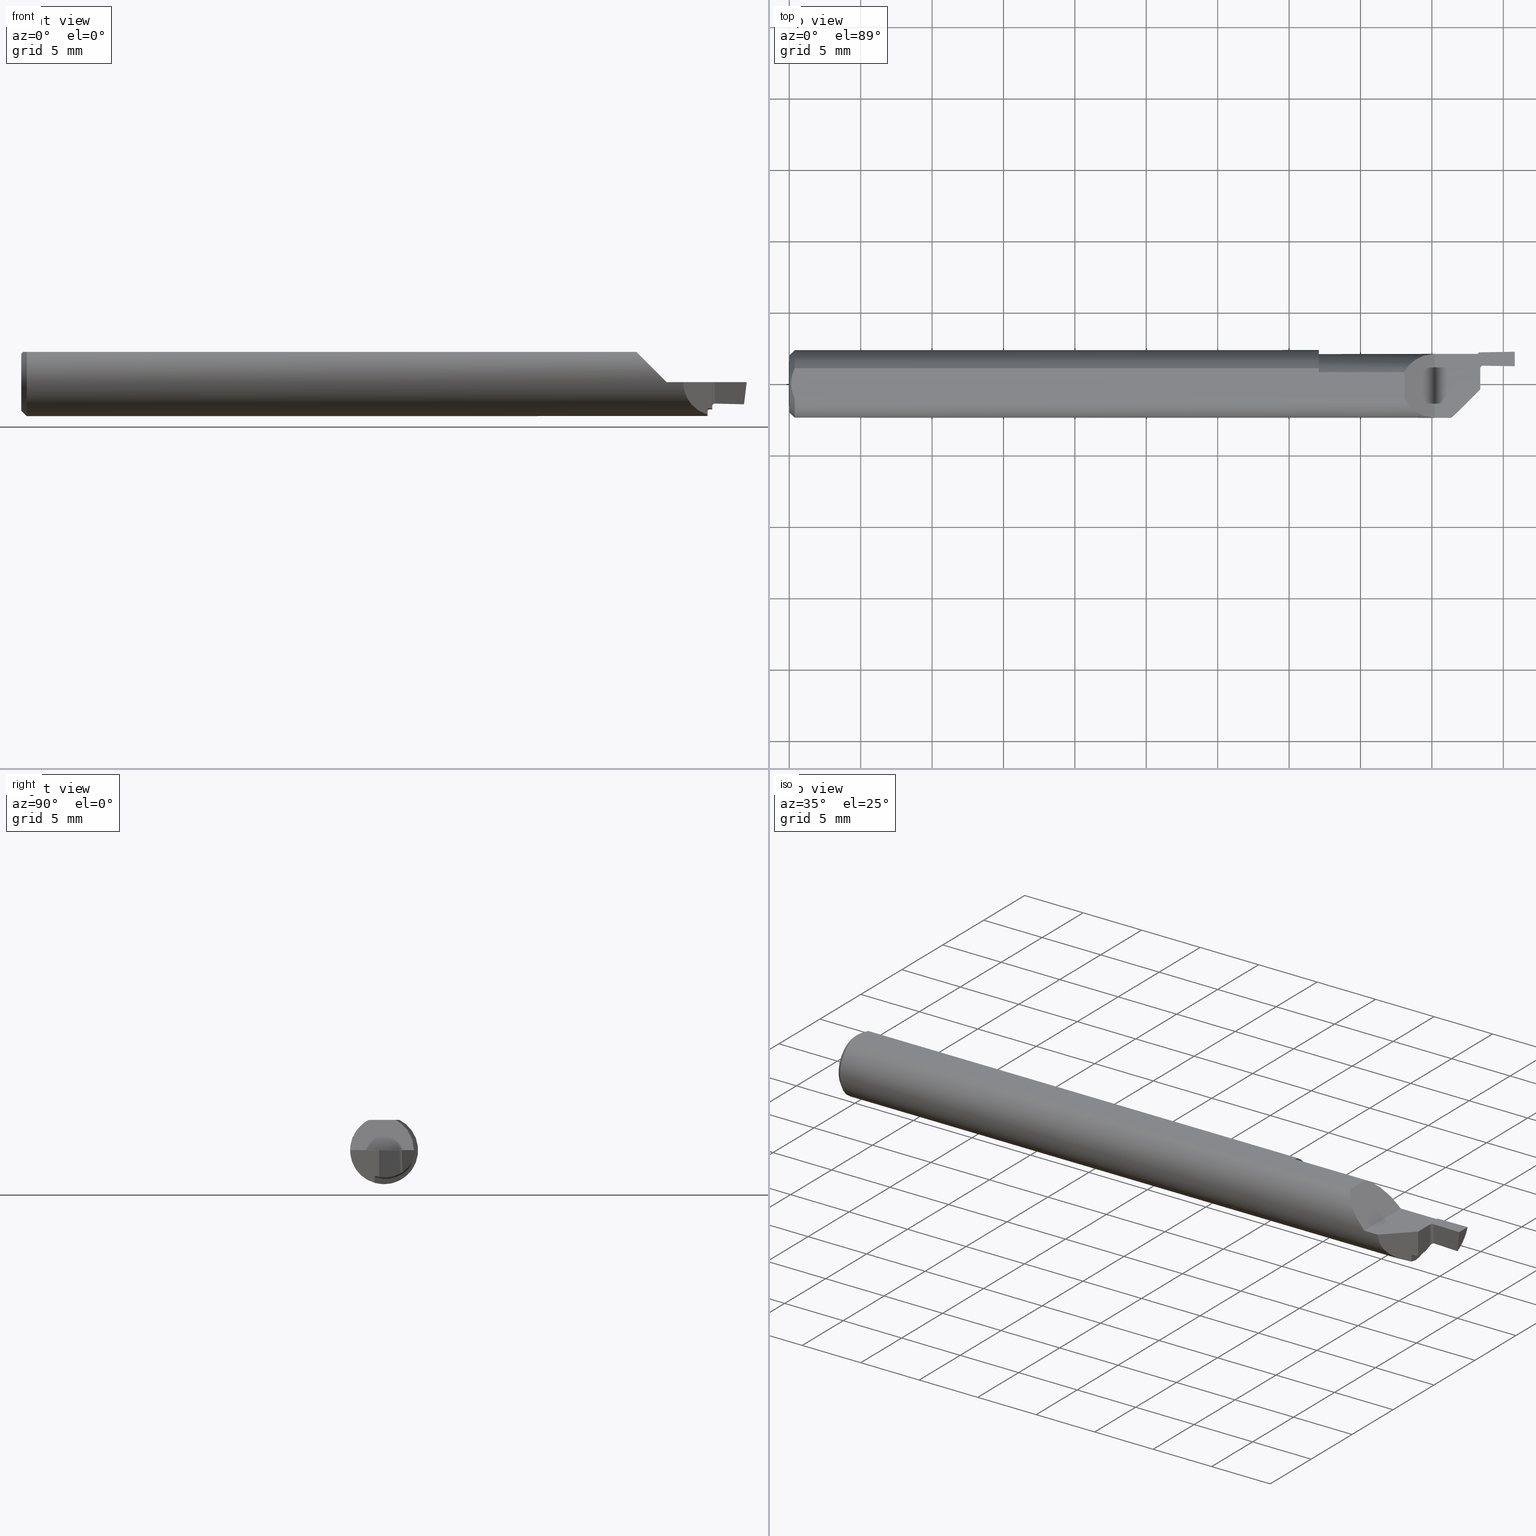
[diagram: canonical four-view strip — front | top / right | iso, engineering-drawing reading convention]
A machine part, canonical four-view strip (front | top / right | iso — engineering-drawing reading convention). The complete STEP part file that produces these views, byte-faithful:
ISO-10303-21;
HEADER;
FILE_DESCRIPTION (( 'STEP AP203' ),
    '1' );
FILE_NAME ('220028-FG187-040.STEP',
    '2024-06-10T22:15:43',
    ( '' ),
    ( '' ),
    'SwSTEP 2.0',
    'SolidWorks 2022',
    '' );
FILE_SCHEMA (( 'CONFIG_CONTROL_DESIGN' ));
ENDSEC;

DATA;
#1 = FACE_OUTER_BOUND ( 'NONE', #577, .T. ) ;
#2 = DIRECTION ( 'NONE',  ( -1.000000000000000000, 0.000000000000000000, 0.000000000000000000 ) ) ;
#3 = EDGE_CURVE ( 'NONE', #545, #340, #315, .T. ) ;
#4 = CARTESIAN_POINT ( 'NONE',  ( 1.896994917746188447, -0.02160508225381154238, -0.07154724494408393198 ) ) ;
#5 = ORIENTED_EDGE ( 'NONE', *, *, #319, .F. ) ;
#6 =( BOUNDED_CURVE ( )  B_SPLINE_CURVE ( 3, ( #253, #643, #73, #513 ),
 .UNSPECIFIED., .F., .T. ) 
 B_SPLINE_CURVE_WITH_KNOTS ( ( 4, 4 ),
 ( 0.7243394682732841039, 1.594068833761937753 ),
 .UNSPECIFIED. ) 
 CURVE ( )  GEOMETRIC_REPRESENTATION_ITEM ( )  RATIONAL_B_SPLINE_CURVE ( ( 1.000000000000000000, 0.9379513720636319940, 0.9379513720636319940, 1.000000000000000000 ) ) 
 REPRESENTATION_ITEM ( '' )  );
#7 = CARTESIAN_POINT ( 'NONE',  ( 1.913379501196029953, 0.06385325710333930593, -0.3934609555193290253 ) ) ;
#8 = LINE ( 'NONE', #385, #618 ) ;
#9 = ORIENTED_EDGE ( 'NONE', *, *, #396, .T. ) ;
#10 = AXIS2_PLACEMENT_3D ( 'NONE', #557, #427, #738 ) ;
#11 = CARTESIAN_POINT ( 'NONE',  ( 1.939295264679281816, 0.05174497146319929214, -0.05972979146519145216 ) ) ;
#12 = VECTOR ( 'NONE', #371, 39.37007874015748143 ) ;
#13 = DIRECTION ( 'NONE',  ( -1.000000000000000000, -0.000000000000000000, -0.000000000000000000 ) ) ;
#14 = CARTESIAN_POINT ( 'NONE',  ( 1.459999999999999964, 0.03097154424326390224, 0.08359999999999999376 ) ) ;
#15 = ORIENTED_EDGE ( 'NONE', *, *, #775, .T. ) ;
#16 = CARTESIAN_POINT ( 'NONE',  ( 1.892392784640333669, 0.07640332330515513248, -0.03349313484600640461 ) ) ;
#17 = DIRECTION ( 'NONE',  ( -1.000000000000000000, -0.000000000000000000, -0.000000000000000000 ) ) ;
#18 = CARTESIAN_POINT ( 'NONE',  ( 1.896994917746188447, -0.02160508225381154238, -0.07154724494408393198 ) ) ;
#19 = ORIENTED_EDGE ( 'NONE', *, *, #380, .F. ) ;
#20 = CARTESIAN_POINT ( 'NONE',  ( 1.913175719815229714, 0.05217862961622522777, -0.05909243987015889987 ) ) ;
#21 = ADVANCED_FACE ( 'NONE', ( #171 ), #124, .F. ) ;
#22 = B_SPLINE_CURVE_WITH_KNOTS ( 'NONE', 3,
 ( #767, #578, #67, #388, #271, #318, #209, #449, #16, #748, #757, #201, #461, #699 ),
 .UNSPECIFIED., .F., .F.,
 ( 4, 2, 2, 2, 2, 2, 4 ),
 ( 7.256861030427188251E-05, 9.698085888651912642E-05, 0.0001213931074687663839, 0.0001702176046332608988, 0.0002678665989622434776, 0.0004631645876202049490, 0.0008537605649361273497 ),
 .UNSPECIFIED. ) ;
#23 = CARTESIAN_POINT ( 'NONE',  ( 1.824999999999999512, -0.09359999999999998876, -0.04306537613498800238 ) ) ;
#24 = CARTESIAN_POINT ( 'NONE',  ( 1.899999999999999911, 0.08559923835978050510, 0.000000000000000000 ) ) ;
#25 = ORIENTED_EDGE ( 'NONE', *, *, #368, .F. ) ;
#26 = VECTOR ( 'NONE', #623, 39.37007874015748143 ) ;
#27 = EDGE_CURVE ( 'NONE', #327, #444, #90, .T. ) ;
#28 = DIRECTION ( 'NONE',  ( 0.000000000000000000, 0.000000000000000000, -1.000000000000000000 ) ) ;
#29 = DIRECTION ( 'NONE',  ( 1.000000000000000000, 0.000000000000000000, 0.000000000000000000 ) ) ;
#30 = EDGE_LOOP ( 'NONE', ( #165, #138, #478, #420 ) ) ;
#31 =( BOUNDED_CURVE ( )  B_SPLINE_CURVE ( 3, ( #588, #584, #23, #333 ),
 .UNSPECIFIED., .F., .T. ) 
 B_SPLINE_CURVE_WITH_KNOTS ( ( 4, 4 ),
 ( 4.999657666618046115, 6.283185307179586232 ),
 .UNSPECIFIED. ) 
 CURVE ( )  GEOMETRIC_REPRESENTATION_ITEM ( )  RATIONAL_B_SPLINE_CURVE ( ( 1.000000000000000000, 0.8673607768766125048, 0.8673607768766125048, 1.000000000000000000 ) ) 
 REPRESENTATION_ITEM ( '' )  );
#32 = LENGTH_MEASURE_WITH_UNIT ( LENGTH_MEASURE( 0.02539999999999999897 ), #219 );
#33 = FACE_OUTER_BOUND ( 'NONE', #630, .T. ) ;
#34 = ADVANCED_FACE ( 'NONE', ( #182 ), #678, .F. ) ;
#35 = ORIENTED_EDGE ( 'NONE', *, *, #608, .T. ) ;
#36 =( NAMED_UNIT ( * ) PLANE_ANGLE_UNIT ( ) SI_UNIT ( $, .RADIAN. ) );
#37 = B_SPLINE_CURVE_WITH_KNOTS ( 'NONE', 3,
 ( #458, #330, #520, #759, #702, #144 ),
 .UNSPECIFIED., .F., .F.,
 ( 4, 2, 4 ),
 ( 0.002614097267282435456, 0.003163218599391052176, 0.003712339931499668896 ),
 .UNSPECIFIED. ) ;
#38 = PLANE ( 'NONE',  #734 ) ;
#39 = EDGE_LOOP ( 'NONE', ( #586, #301, #780, #297, #397 ) ) ;
#40 = DIRECTION ( 'NONE',  ( -1.000000000000000000, 0.000000000000000000, -0.000000000000000000 ) ) ;
#41 = AXIS2_PLACEMENT_3D ( 'NONE', #394, #13, #147 ) ;
#42 = ORIENTED_EDGE ( 'NONE', *, *, #637, .F. ) ;
#43 = DATE_AND_TIME ( #154, #701 ) ;
#44 = ORIENTED_EDGE ( 'NONE', *, *, #258, .F. ) ;
#45 = LINE ( 'NONE', #295, #141 ) ;
#46 = CARTESIAN_POINT ( 'NONE',  ( 1.899999999999999911, 0.08509651046069781344, -0.009837364951166946772 ) ) ;
#47 = EDGE_CURVE ( 'NONE', #306, #648, #685, .T. ) ;
#48 = ORIENTED_EDGE ( 'NONE', *, *, #654, .T. ) ;
#49 = CARTESIAN_POINT ( 'NONE',  ( 1.905000000000000027, 0.04211661038418336445, -0.06521610223097017156 ) ) ;
#50 = EDGE_CURVE ( 'NONE', #567, #670, #669, .T. ) ;
#51 = CARTESIAN_POINT ( 'NONE',  ( 1.896576406695606787, 0.002371399776088480536, 0.01000000000000000715 ) ) ;
#52 = CC_DESIGN_SECURITY_CLASSIFICATION ( #551, ( #563 ) ) ;
#53 = DATE_AND_TIME ( #120, #192 ) ;
#54 = ORIENTED_EDGE ( 'NONE', *, *, #107, .T. ) ;
#55 = EDGE_CURVE ( 'NONE', #448, #60, #300, .T. ) ;
#56 = CARTESIAN_POINT ( 'NONE',  ( 1.913000000000000034, 0.04211661038418336445, 0.000000000000000000 ) ) ;
#57 = ORIENTED_EDGE ( 'NONE', *, *, #107, .F. ) ;
#58 = CARTESIAN_POINT ( 'NONE',  ( 1.908951142015547831, 0.04932746018946278233, -3.006366610597401844E-05 ) ) ;
#59 = ORIENTED_EDGE ( 'NONE', *, *, #68, .T. ) ;
#60 = VERTEX_POINT ( 'NONE', #617 ) ;
#61 = PLANE ( 'NONE',  #376 ) ;
#62 = CARTESIAN_POINT ( 'NONE',  ( 1.897000000000000020, 0.07811319095266830437, -0.02861409169956518131 ) ) ;
#63 = VECTOR ( 'NONE', #601, 39.37007874015748143 ) ;
#64 = EDGE_LOOP ( 'NONE', ( #25, #688, #631, #110, #721, #746 ) ) ;
#65 = DIRECTION ( 'NONE',  ( 1.000000000000000000, 0.000000000000000000, 0.000000000000000000 ) ) ;
#66 = VERTEX_POINT ( 'NONE', #62 ) ;
#67 = CARTESIAN_POINT ( 'NONE',  ( 1.894627732444366996, 0.07811913687754187818, -0.02859649675619973727 ) ) ;
#68 = EDGE_CURVE ( 'NONE', #149, #170, #682, .T. ) ;
#69 = DIRECTION ( 'NONE',  ( -0.9998476951563914916, -0.01745240643726934937, -0.000000000000000000 ) ) ;
#70 = ORIENTED_EDGE ( 'NONE', *, *, #775, .F. ) ;
#71 = CARTESIAN_POINT ( 'NONE',  ( 1.905000000000000027, 0.04211661038418336445, -0.06521610223097017156 ) ) ;
#72 = CARTESIAN_POINT ( 'NONE',  ( 2.000000000000000000, 0.04859923835978044449, 0.000000000000000000 ) ) ;
#73 = CARTESIAN_POINT ( 'NONE',  ( 1.996896559845279695, 0.08555022964882603997, -0.02527549173853183007 ) ) ;
#74 = ORIENTED_EDGE ( 'NONE', *, *, #213, .F. ) ;
#75 = AXIS2_PLACEMENT_3D ( 'NONE', #175, #130, #87 ) ;
#76 = CARTESIAN_POINT ( 'NONE',  ( 1.905000000000000027, 0.04211661038418336445, -0.06521610223097017156 ) ) ;
#77 = CARTESIAN_POINT ( 'NONE',  ( 0.01499999999999995955, 0.000000000000000000, 0.000000000000000000 ) ) ;
#78 = CARTESIAN_POINT ( 'NONE',  ( 1.897000000000000020, 0.08259923835978051632, 0.000000000000000000 ) ) ;
#79 = EDGE_CURVE ( 'NONE', #698, #567, #733, .T. ) ;
#80 = ORIENTED_EDGE ( 'NONE', *, *, #421, .F. ) ;
#81 = CARTESIAN_POINT ( 'NONE',  ( 1.905039367740892775, 0.04435823648977697126, -0.0002059503887026216222 ) ) ;
#82 = CARTESIAN_POINT ( 'NONE',  ( 1.900000000000000133, 0.08646133631751821980, -0.003311695188681142675 ) ) ;
#83 = CARTESIAN_POINT ( 'NONE',  ( 1.899631377844050562, -0.01896862215594958059, -0.07230888502789241390 ) ) ;
#84 = ORIENTED_EDGE ( 'NONE', *, *, #608, .F. ) ;
#85 = PLANE ( 'NONE',  #671 ) ;
#86 = FACE_OUTER_BOUND ( 'NONE', #779, .T. ) ;
#87 = DIRECTION ( 'NONE',  ( 0.01745240643726935284, -0.9998476951563916026, 0.000000000000000000 ) ) ;
#88 = ORIENTED_EDGE ( 'NONE', *, *, #684, .F. ) ;
#89 = APPROVAL_DATE_TIME ( #653, #191 ) ;
#90 = CIRCLE ( 'NONE', #519, 0.08499999999999999223 ) ;
#91 = CARTESIAN_POINT ( 'NONE',  ( 1.905011098891424837, 0.04257101152226280827, -0.01821128032569402019 ) ) ;
#92 = ADVANCED_FACE ( 'NONE', ( #1 ), #480, .F. ) ;
#93 = CARTESIAN_POINT ( 'NONE',  ( 0.000000000000000000, -0.1936000000000000221, 0.08360000000000000764 ) ) ;
#94 = ORIENTED_EDGE ( 'NONE', *, *, #373, .T. ) ;
#95 = PERSON_AND_ORGANIZATION_ROLE ( 'creator' ) ;
#96 = ADVANCED_FACE ( 'NONE', ( #249 ), #325, .F. ) ;
#97 = LINE ( 'NONE', #279, #607 ) ;
#98 = ORIENTED_EDGE ( 'NONE', *, *, #784, .T. ) ;
#99 = DATE_AND_TIME ( #412, #787 ) ;
#100 = CARTESIAN_POINT ( 'NONE',  ( 1.459999999999999964, 0.000000000000000000, 0.000000000000000000 ) ) ;
#101 = ORIENTED_EDGE ( 'NONE', *, *, #337, .F. ) ;
#102 = PERSON_AND_ORGANIZATION ( #438, #778 ) ;
#103 = CARTESIAN_POINT ( 'NONE',  ( 1.905038315591961240, 0.04634812526522222309, -0.06286898027628366747 ) ) ;
#104 = AXIS2_PLACEMENT_3D ( 'NONE', #93, #350, #286 ) ;
#105 = AXIS2_PLACEMENT_3D ( 'NONE', #683, #379, #2 ) ;
#106 = VERTEX_POINT ( 'NONE', #731 ) ;
#107 = EDGE_CURVE ( 'NONE', #331, #60, #8, .T. ) ;
#108 = PERSON_AND_ORGANIZATION ( #438, #778 ) ;
#109 = CARTESIAN_POINT ( 'NONE',  ( 1.898654429622973705, 0.07940292123896365573, -0.02604468135729574516 ) ) ;
#110 = ORIENTED_EDGE ( 'NONE', *, *, #116, .T. ) ;
#111 = PLANE ( 'NONE',  #679 ) ;
#112 =( BOUNDED_CURVE ( )  B_SPLINE_CURVE ( 3, ( #20, #11, #276, #510 ),
 .UNSPECIFIED., .F., .F. ) 
 B_SPLINE_CURVE_WITH_KNOTS ( ( 4, 4 ),
 ( 0.9839601525351726607, 1.022577362368439546 ),
 .UNSPECIFIED. ) 
 CURVE ( )  GEOMETRIC_REPRESENTATION_ITEM ( )  RATIONAL_B_SPLINE_CURVE ( ( 1.000000000000000000, 0.9998757297863545279, 0.9998757297863545279, 1.000000000000000000 ) ) 
 REPRESENTATION_ITEM ( '' )  );
#113 = DIRECTION ( 'NONE',  ( 0.000000000000000000, 0.000000000000000000, -1.000000000000000000 ) ) ;
#114 = EDGE_LOOP ( 'NONE', ( #348, #35 ) ) ;
#115 = DIRECTION ( 'NONE',  ( -1.000000000000000000, -0.000000000000000000, -0.000000000000000000 ) ) ;
#116 = EDGE_CURVE ( 'NONE', #327, #304, #529, .T. ) ;
#117 = VECTOR ( 'NONE', #210, 39.37007874015748143 ) ;
#118 = ORIENTED_EDGE ( 'NONE', *, *, #684, .T. ) ;
#119 = AXIS2_PLACEMENT_3D ( 'NONE', #7, #693, #132 ) ;
#120 = CALENDAR_DATE ( 2024, 10, 6 ) ;
#121 = LINE ( 'NONE', #495, #364 ) ;
#122 = EDGE_CURVE ( 'NONE', #149, #625, #634, .T. ) ;
#123 = DIRECTION ( 'NONE',  ( -1.000000000000000000, -0.000000000000000000, -0.000000000000000000 ) ) ;
#124 = PLANE ( 'NONE',  #10 ) ;
#125 = CARTESIAN_POINT ( 'NONE',  ( 1.459999999999999964, -0.01090076164021952856, 0.000000000000000000 ) ) ;
#126 = DIRECTION ( 'NONE',  ( -0.9998476951563914916, -0.01745240643726934937, 0.000000000000000000 ) ) ;
#127 = CIRCLE ( 'NONE', #407, 0.07860000000000036402 ) ;
#128 = ADVANCED_FACE ( 'NONE', ( #133 ), #269, .F. ) ;
#129 = CARTESIAN_POINT ( 'NONE',  ( 1.951117865256423389, 0.06335701060675220930, -0.3981130394906226000 ) ) ;
#130 = DIRECTION ( 'NONE',  ( -0.9998476951563914916, -0.01745240643726934937, 0.000000000000000000 ) ) ;
#131 = EDGE_LOOP ( 'NONE', ( #774, #467, #5 ) ) ;
#132 = DIRECTION ( 'NONE',  ( 0.000000000000000000, -0.03490480639812536257, 0.9993906415863165194 ) ) ;
#133 = FACE_OUTER_BOUND ( 'NONE', #39, .T. ) ;
#134 = VERTEX_POINT ( 'NONE', #24 ) ;
#135 = CARTESIAN_POINT ( 'NONE',  ( 1.897000000000000020, 0.07811319095266830437, -0.02861409169956518131 ) ) ;
#136 = ADVANCED_FACE ( 'NONE', ( #256 ), #447, .T. ) ;
#137 = CARTESIAN_POINT ( 'NONE',  ( 1.905239968482531410, 0.05585934818369544391, -0.3937450271037417626 ) ) ;
#138 = ORIENTED_EDGE ( 'NONE', *, *, #576, .T. ) ;
#139 = VECTOR ( 'NONE', #486, 39.37007874015748143 ) ;
#140 = CARTESIAN_POINT ( 'NONE',  ( 1.905005047996914724, 0.04240076257643091151, -0.008282853068179265796 ) ) ;
#141 = VECTOR ( 'NONE', #349, 39.37007874015748854 ) ;
#142 = DIRECTION ( 'NONE',  ( 0.000000000000000000, 0.000000000000000000, -1.000000000000000000 ) ) ;
#143 = CC_DESIGN_PERSON_AND_ORGANIZATION_ASSIGNMENT ( #718, #161, ( #551 ) ) ;
#144 = CARTESIAN_POINT ( 'NONE',  ( 0.01499999999999995781, -0.04209513035969836975, 0.08360000000000000764 ) ) ;
#145 = ORIENTED_EDGE ( 'NONE', *, *, #666, .F. ) ;
#146 = CARTESIAN_POINT ( 'NONE',  ( 1.895835606825327035, 0.07814781751419529188, -0.02850620589952995720 ) ) ;
#147 = DIRECTION ( 'NONE',  ( 0.000000000000000000, 0.000000000000000000, 1.000000000000000000 ) ) ;
#148 = CARTESIAN_POINT ( 'NONE',  ( 1.894826635570537654, -0.02377336442946256442, -0.07123567364663407897 ) ) ;
#149 = VERTEX_POINT ( 'NONE', #273 ) ;
#150 = CARTESIAN_POINT ( 'NONE',  ( 1.905002345047224210, 0.04231151640864821289, -0.002944330583908061870 ) ) ;
#151 = CARTESIAN_POINT ( 'NONE',  ( 0.000000000000000000, 0.000000000000000000, 0.000000000000000000 ) ) ;
#152 = PLANE ( 'NONE',  #104 ) ;
#153 = VERTEX_POINT ( 'NONE', #453 ) ;
#154 = CALENDAR_DATE ( 2024, 10, 6 ) ;
#155 = EDGE_CURVE ( 'NONE', #344, #606, #324, .T. ) ;
#156 = CIRCLE ( 'NONE', #41, 0.09350000000000004141 ) ;
#157 = CYLINDRICAL_SURFACE ( 'NONE', #488, 0.008000000000000024453 ) ;
#158 = VECTOR ( 'NONE', #565, 39.37007874015748143 ) ;
#159 = CARTESIAN_POINT ( 'NONE',  ( 1.695999999999999286, -0.04209513035969836975, 0.08360000000000000764 ) ) ;
#160 = ORIENTED_EDGE ( 'NONE', *, *, #674, .F. ) ;
#161 = PERSON_AND_ORGANIZATION_ROLE ( 'classification_officer' ) ;
#162 = ORIENTED_EDGE ( 'NONE', *, *, #616, .T. ) ;
#163 = CARTESIAN_POINT ( 'NONE',  ( 1.905789552850707391, 0.04825463493178099722, -0.06168128154940461655 ) ) ;
#164 = EDGE_CURVE ( 'NONE', #541, #60, #6, .T. ) ;
#165 = ORIENTED_EDGE ( 'NONE', *, *, #674, .T. ) ;
#166 =( NAMED_UNIT ( * ) SI_UNIT ( $, .STERADIAN. ) SOLID_ANGLE_UNIT ( ) );
#167 = CARTESIAN_POINT ( 'NONE',  ( 1.897728070802320310, 0.07832464750905539230, -0.02822386581769532540 ) ) ;
#168 = CIRCLE ( 'NONE', #452, 0.09360000000000001652 ) ;
#169 =( BOUNDED_CURVE ( )  B_SPLINE_CURVE ( 3, ( #750, #262, #754, #650 ),
 .UNSPECIFIED., .F., .F. ) 
 B_SPLINE_CURVE_WITH_KNOTS ( ( 4, 4 ),
 ( 0.6209638303900812950, 1.521662293291193846 ),
 .UNSPECIFIED. ) 
 CURVE ( )  GEOMETRIC_REPRESENTATION_ITEM ( )  RATIONAL_B_SPLINE_CURVE ( ( 1.000000000000000000, 0.9335300958672718696, 0.9335300958672718696, 1.000000000000000000 ) ) 
 REPRESENTATION_ITEM ( '' )  );
#170 = VERTEX_POINT ( 'NONE', #78 ) ;
#171 = FACE_OUTER_BOUND ( 'NONE', #227, .T. ) ;
#172 = PERSON_AND_ORGANIZATION ( #438, #778 ) ;
#173 = EDGE_CURVE ( 'NONE', #340, #200, #37, .T. ) ;
#174 = DIRECTION ( 'NONE',  ( 0.000000000000000000, 0.000000000000000000, 1.000000000000000000 ) ) ;
#175 = CARTESIAN_POINT ( 'NONE',  ( 1.896576406695606787, 0.002371399776088482271, 0.01000000000000000715 ) ) ;
#176 = CARTESIAN_POINT ( 'NONE',  ( 1.752499999999999725, -0.1660999999999995536, 0.000000000000000000 ) ) ;
#177 = CC_DESIGN_PERSON_AND_ORGANIZATION_ASSIGNMENT ( #102, #771, ( #460 ) ) ;
#178 = CLOSED_SHELL ( 'NONE', ( #278, #265, #409, #21, #307, #34, #136, #96, #360, #525, #553, #429, #451, #128, #737, #413, #238, #226, #92, #764, #547 ) ) ;
#179 = CARTESIAN_POINT ( 'NONE',  ( 0.005981829149300420256, 0.01454044632356572483, 0.08359999999999997988 ) ) ;
#180 =( GEOMETRIC_REPRESENTATION_CONTEXT ( 3 ) GLOBAL_UNCERTAINTY_ASSIGNED_CONTEXT ( ( #241 ) ) GLOBAL_UNIT_ASSIGNED_CONTEXT ( ( #215, #36, #166 ) ) REPRESENTATION_CONTEXT ( 'NONE', 'WORKASPACE' ) );
#181 = DIRECTION ( 'NONE',  ( 0.7071067811865496822, 0.7071067811865453523, 0.000000000000000000 ) ) ;
#182 = FACE_OUTER_BOUND ( 'NONE', #416, .T. ) ;
#183 = DATE_TIME_ROLE ( 'classification_date' ) ;
#184 = B_SPLINE_CURVE_WITH_KNOTS ( 'NONE', 3,
 ( #203, #443, #400, #647, #207, #148, #651, #4 ),
 .UNSPECIFIED., .F., .F.,
 ( 4, 2, 2, 4 ),
 ( 8.741117365843378158E-19, 5.750701084806425137E-05, 0.0001150140216961276218, 0.0002300280433922680644 ),
 .UNSPECIFIED. ) ;
#185 = CARTESIAN_POINT ( 'NONE',  ( 1.905039330060488423, 0.04339159369450147630, -0.06453354027761774858 ) ) ;
#186 = EDGE_CURVE ( 'NONE', #625, #254, #471, .T. ) ;
#187 = ORIENTED_EDGE ( 'NONE', *, *, #496, .T. ) ;
#188 = ORIENTED_EDGE ( 'NONE', *, *, #613, .T. ) ;
#189 = CARTESIAN_POINT ( 'NONE',  ( 1.992515987720087312, 0.05085870082597327563, -0.06095238867882556144 ) ) ;
#190 = CARTESIAN_POINT ( 'NONE',  ( 0.000000000000000000, 9.625723841298240530E-18, 0.07860000000000036402 ) ) ;
#191 = APPROVAL ( #726, 'UNSPECIFIED' ) ;
#192 = LOCAL_TIME ( 15, 15, 43.00000000000000000, #788 ) ;
#193 = FACE_OUTER_BOUND ( 'NONE', #30, .T. ) ;
#194 = CARTESIAN_POINT ( 'NONE',  ( 1.712338867969052103, -0.07454376160376645355, 0.06726113203094705173 ) ) ;
#195 = EDGE_LOOP ( 'NONE', ( #741, #274, #652, #145, #473, #204 ) ) ;
#196 = CARTESIAN_POINT ( 'NONE',  ( 1.905938313768161807, 0.04642168275000606303, -0.0001333563681698293963 ) ) ;
#197 = EDGE_CURVE ( 'NONE', #306, #327, #184, .T. ) ;
#198 = CARTESIAN_POINT ( 'NONE',  ( 1.459999999999999964, -0.006308577734120122439, -0.09338716103925936984 ) ) ;
#199 = CARTESIAN_POINT ( 'NONE',  ( 1.459999999999999964, 0.1325992383597804636, 0.000000000000000000 ) ) ;
#200 = VERTEX_POINT ( 'NONE', #751 ) ;
#201 = CARTESIAN_POINT ( 'NONE',  ( 1.890598524915549916, 0.07068001362818430999, -0.04595452350073047504 ) ) ;
#202 = DIRECTION ( 'NONE',  ( -0.9999998142845093474, 3.870805573076184684E-15, -0.0006094513490876643774 ) ) ;
#203 = CARTESIAN_POINT ( 'NONE',  ( 1.892079947235355775, -0.02652005276464429115, -0.07526468097875520236 ) ) ;
#204 = ORIENTED_EDGE ( 'NONE', *, *, #79, .F. ) ;
#205 = LINE ( 'NONE', #456, #521 ) ;
#206 = FACE_OUTER_BOUND ( 'NONE', #114, .T. ) ;
#207 = CARTESIAN_POINT ( 'NONE',  ( 1.893345323573090599, -0.02525467642690956693, -0.07208339352108224241 ) ) ;
#208 = VERTEX_POINT ( 'NONE', #744 ) ;
#209 = CARTESIAN_POINT ( 'NONE',  ( 1.893292644685816706, 0.07743868350388317945, -0.03063904863663299491 ) ) ;
#210 = DIRECTION ( 'NONE',  ( -1.000000000000000000, -0.000000000000000000, -0.000000000000000000 ) ) ;
#211 = PRODUCT_DEFINITION_SHAPE ( 'NONE', 'NONE',  #558 ) ;
#212 = DIRECTION ( 'NONE',  ( 1.000000000000000000, 0.000000000000000000, 0.000000000000000000 ) ) ;
#213 = EDGE_CURVE ( 'NONE', #153, #340, #320, .T. ) ;
#214 = ORIENTED_EDGE ( 'NONE', *, *, #27, .F. ) ;
#215 =( CONVERSION_BASED_UNIT ( 'INCH', #32 ) LENGTH_UNIT ( ) NAMED_UNIT ( #548 ) );
#216 = DIRECTION ( 'NONE',  ( -0.000000000000000000, -0.000000000000000000, 1.000000000000000000 ) ) ;
#217 = DIRECTION ( 'NONE',  ( 0.000000000000000000, 0.000000000000000000, -1.000000000000000000 ) ) ;
#218 = VERTEX_POINT ( 'NONE', #575 ) ;
#219 =( LENGTH_UNIT ( ) NAMED_UNIT ( * ) SI_UNIT ( $, .METRE. ) );
#220 = VECTOR ( 'NONE', #554, 39.37007874015748143 ) ;
#221 = LINE ( 'NONE', #610, #691 ) ;
#222 = VECTOR ( 'NONE', #336, 39.37007874015748143 ) ;
#223 = DIRECTION ( 'NONE',  ( 0.7071067811865515695, -0.000000000000000000, 0.7071067811865434649 ) ) ;
#224 = VERTEX_POINT ( 'NONE', #14 ) ;
#225 = APPLICATION_PROTOCOL_DEFINITION ( 'international standard', 'config_control_design', 1994, #600 ) ;
#226 = ADVANCED_FACE ( 'NONE', ( #508 ), #755, .T. ) ;
#227 = EDGE_LOOP ( 'NONE', ( #351, #602, #401, #703, #459, #365, #708, #54, #597, #392, #358 ) ) ;
#228 = COORDINATED_UNIVERSAL_TIME_OFFSET ( 8, 0, .BEHIND. ) ;
#229 = ORIENTED_EDGE ( 'NONE', *, *, #464, .F. ) ;
#230 = DATE_TIME_ROLE ( 'creation_date' ) ;
#231 = CARTESIAN_POINT ( 'NONE',  ( 1.899289477571177054, 0.08080956693883656339, -0.02293417341056821351 ) ) ;
#232 = AXIS2_PLACEMENT_3D ( 'NONE', #399, #446, #640 ) ;
#233 = AXIS2_PLACEMENT_3D ( 'NONE', #243, #65, #240 ) ;
#234 = EDGE_CURVE ( 'NONE', #382, #439, #168, .T. ) ;
#235 = ORIENTED_EDGE ( 'NONE', *, *, #347, .F. ) ;
#236 = FACE_OUTER_BOUND ( 'NONE', #611, .T. ) ;
#237 = ORIENTED_EDGE ( 'NONE', *, *, #173, .F. ) ;
#238 = ADVANCED_FACE ( 'NONE', ( #715 ), #343, .F. ) ;
#239 = ORIENTED_EDGE ( 'NONE', *, *, #3, .F. ) ;
#240 = DIRECTION ( 'NONE',  ( 0.000000000000000000, 0.000000000000000000, -1.000000000000000000 ) ) ;
#241 = UNCERTAINTY_MEASURE_WITH_UNIT (LENGTH_MEASURE( 1.000000000000000082E-05 ), #215, 'distance_accuracy_value', 'NONE');
#242 = CARTESIAN_POINT ( 'NONE',  ( 1.660946387129862867, 0.08259923835978048856, 0.000000000000000000 ) ) ;
#243 = CARTESIAN_POINT ( 'NONE',  ( 0.000000000000000000, 0.000000000000000000, 0.000000000000000000 ) ) ;
#244 = APPROVAL_PERSON_ORGANIZATION ( #465, #642, #713 ) ;
#245 = CARTESIAN_POINT ( 'NONE',  ( 1.891577168219824578, 0.002284137743902132488, 0.01000000000000000715 ) ) ;
#246 = VECTOR ( 'NONE', #485, 39.37007874015748143 ) ;
#247 = CARTESIAN_POINT ( 'NONE',  ( 1.905000000000000027, -0.01360000000000000965, -0.09360000000000001652 ) ) ;
#248 = EDGE_CURVE ( 'NONE', #766, #625, #346, .T. ) ;
#249 = FACE_OUTER_BOUND ( 'NONE', #536, .T. ) ;
#250 = ORIENTED_EDGE ( 'NONE', *, *, #164, .T. ) ;
#251 = CARTESIAN_POINT ( 'NONE',  ( 1.905039168944228756, 0.04387016295940432409, -0.06426917753601803229 ) ) ;
#252 = B_SPLINE_CURVE_WITH_KNOTS ( 'NONE', 3,
 ( #556, #622, #58, #196, #81, #442 ),
 .UNSPECIFIED., .F., .F.,
 ( 4, 2, 4 ),
 ( 0.000000000000000000, 0.5000000000000000000, 1.000000000000000000 ),
 .UNSPECIFIED. ) ;
#253 = CARTESIAN_POINT ( 'NONE',  ( 1.992515987720087312, 0.05085870082597327563, -0.06095238867882556144 ) ) ;
#254 = VERTEX_POINT ( 'NONE', #159 ) ;
#255 = CARTESIAN_POINT ( 'NONE',  ( 1.660946387129862867, 0.03097154424326391264, 0.08360000000000000764 ) ) ;
#256 = FACE_OUTER_BOUND ( 'NONE', #509, .T. ) ;
#257 = AXIS2_PLACEMENT_3D ( 'NONE', #758, #202, #277 ) ;
#258 = EDGE_CURVE ( 'NONE', #335, #567, #97, .T. ) ;
#259 = CIRCLE ( 'NONE', #799, 0.09360000000000001652 ) ;
#260 = ORIENTED_EDGE ( 'NONE', *, *, #122, .F. ) ;
#261 = CARTESIAN_POINT ( 'NONE',  ( 1.895253422800819543, 0.07816509634661619743, -0.02845211663600469981 ) ) ;
#262 = CARTESIAN_POINT ( 'NONE',  ( 1.890775105635997821, 0.04823427239682376994, -0.07803867357391536252 ) ) ;
#263 = CARTESIAN_POINT ( 'NONE',  ( 1.779599999999998516, -0.09360000000000001652, 0.000000000000000000 ) ) ;
#264 = ORIENTED_EDGE ( 'NONE', *, *, #595, .F. ) ;
#265 = ADVANCED_FACE ( 'NONE', ( #33 ), #152, .F. ) ;
#266 = MANIFOLD_SOLID_BREP ( 'Cut-Revolve1', #178 ) ;
#267 = LINE ( 'NONE', #255, #735 ) ;
#268 = FACE_OUTER_BOUND ( 'NONE', #131, .T. ) ;
#269 = CYLINDRICAL_SURFACE ( 'NONE', #747, 0.007999999999999972411 ) ;
#270 = ORIENTED_EDGE ( 'NONE', *, *, #380, .T. ) ;
#271 = CARTESIAN_POINT ( 'NONE',  ( 1.893994891725665930, 0.07789552707581877400, -0.02928389011685635437 ) ) ;
#272 = CARTESIAN_POINT ( 'NONE',  ( 1.905000000000000027, -0.01360000000000000965, 0.000000000000000000 ) ) ;
#273 = CARTESIAN_POINT ( 'NONE',  ( 1.779599999999998516, 0.08259923835978043305, 0.000000000000000000 ) ) ;
#274 = ORIENTED_EDGE ( 'NONE', *, *, #319, .T. ) ;
#275 = AXIS2_PLACEMENT_3D ( 'NONE', #657, #410, #773 ) ;
#276 = CARTESIAN_POINT ( 'NONE',  ( 1.965745307600054170, 0.05130494051704226344, -0.06034985145640121840 ) ) ;
#277 = DIRECTION ( 'NONE',  ( -0.0006094513490876642689, 0.000000000000000000, 0.9999998142845092364 ) ) ;
#278 = ADVANCED_FACE ( 'NONE', ( #282 ), #406, .T. ) ;
#279 = CARTESIAN_POINT ( 'NONE',  ( 1.905000000000000027, -0.1936000000000000221, 0.000000000000000000 ) ) ;
#280 = ORIENTED_EDGE ( 'NONE', *, *, #544, .T. ) ;
#281 =( BOUNDED_CURVE ( )  B_SPLINE_CURVE ( 3, ( #700, #323, #82, #450 ),
 .UNSPECIFIED., .F., .F. ) 
 B_SPLINE_CURVE_WITH_KNOTS ( ( 4, 4 ),
 ( 2.906039639379016659, 3.023672501564544035 ),
 .UNSPECIFIED. ) 
 CURVE ( )  GEOMETRIC_REPRESENTATION_ITEM ( )  RATIONAL_B_SPLINE_CURVE ( ( 1.000000000000000000, 0.9988472081966884852, 0.9988472081966884852, 1.000000000000000000 ) ) 
 REPRESENTATION_ITEM ( '' )  );
#282 = FACE_OUTER_BOUND ( 'NONE', #532, .T. ) ;
#283 = ORIENTED_EDGE ( 'NONE', *, *, #288, .F. ) ;
#284 = CALENDAR_DATE ( 2024, 10, 6 ) ;
#285 = DIRECTION ( 'NONE',  ( -0.9998476951563914916, -0.01745240643726934937, 0.000000000000000000 ) ) ;
#286 = DIRECTION ( 'NONE',  ( -1.000000000000000000, 0.000000000000000000, -0.000000000000000000 ) ) ;
#287 = ORIENTED_EDGE ( 'NONE', *, *, #213, .T. ) ;
#288 = EDGE_CURVE ( 'NONE', #134, #505, #628, .T. ) ;
#289 = DIRECTION ( 'NONE',  ( -0.000000000000000000, 0.000000000000000000, 1.000000000000000000 ) ) ;
#290 = AXIS2_PLACEMENT_3D ( 'NONE', #293, #285, #357 ) ;
#291 = ORIENTED_EDGE ( 'NONE', *, *, #595, .T. ) ;
#292 = CC_DESIGN_PERSON_AND_ORGANIZATION_ASSIGNMENT ( #345, #781, ( #563 ) ) ;
#293 = CARTESIAN_POINT ( 'NONE',  ( 1.891577168219824578, 0.002284137743902133789, 0.01000000000000000715 ) ) ;
#294 = ORIENTED_EDGE ( 'NONE', *, *, #116, .F. ) ;
#295 = CARTESIAN_POINT ( 'NONE',  ( 1.784293324788139845, 0.05236441238105157825, 0.000000000000000000 ) ) ;
#296 = CARTESIAN_POINT ( 'NONE',  ( 1.908688986041938040, 0.05123898287809040136, -0.05972380102228544430 ) ) ;
#297 = ORIENTED_EDGE ( 'NONE', *, *, #729, .F. ) ;
#298 = CARTESIAN_POINT ( 'NONE',  ( 1.905039005022236998, 0.04434615925422966121, -0.06400021109286692378 ) ) ;
#299 = CIRCLE ( 'NONE', #538, 0.09349999999999999978 ) ;
#300 = LINE ( 'NONE', #793, #26 ) ;
#301 = ORIENTED_EDGE ( 'NONE', *, *, #531, .T. ) ;
#302 = CARTESIAN_POINT ( 'NONE',  ( 1.905000000000000027, 0.04238392235663795971, -0.06507541636432490062 ) ) ;
#303 =( BOUNDED_CURVE ( )  B_SPLINE_CURVE ( 3, ( #792, #681, #732, #367 ),
 .UNSPECIFIED., .F., .F. ) 
 B_SPLINE_CURVE_WITH_KNOTS ( ( 4, 4 ),
 ( 1.638246794983561072, 1.858065013028253221 ),
 .UNSPECIFIED. ) 
 CURVE ( )  GEOMETRIC_REPRESENTATION_ITEM ( )  RATIONAL_B_SPLINE_CURVE ( ( 1.000000000000000000, 0.9959773811387675480, 0.9959773811387675480, 1.000000000000000000 ) ) 
 REPRESENTATION_ITEM ( '' )  );
#304 = VERTEX_POINT ( 'NONE', #472 ) ;
#305 = LINE ( 'NONE', #800, #246 ) ;
#306 = VERTEX_POINT ( 'NONE', #466 ) ;
#307 = ADVANCED_FACE ( 'NONE', ( #535 ), #38, .T. ) ;
#308 = DIRECTION ( 'NONE',  ( 1.000000000000000000, 0.000000000000000000, 0.000000000000000000 ) ) ;
#309 = VECTOR ( 'NONE', #312, 39.37007874015748143 ) ;
#310 = CC_DESIGN_APPROVAL ( #191, ( #563 ) ) ;
#311 = B_SPLINE_CURVE_WITH_KNOTS ( 'NONE', 3,
 ( #49, #302, #552, #559 ),
 .UNSPECIFIED., .F., .F.,
 ( 4, 4 ),
 ( 0.000000000000000000, 2.269144145444075523E-05 ),
 .UNSPECIFIED. ) ;
#312 = DIRECTION ( 'NONE',  ( 1.000000000000000000, 0.000000000000000000, 0.000000000000000000 ) ) ;
#313 = APPROVAL_DATE_TIME ( #53, #517 ) ;
#314 = LINE ( 'NONE', #375, #158 ) ;
#315 = B_SPLINE_CURVE_WITH_KNOTS ( 'NONE', 3,
 ( #431, #676, #369, #179, #482, #560 ),
 .UNSPECIFIED., .F., .F.,
 ( 4, 2, 4 ),
 ( 0.001518921481343233400, 0.002066509374312834428, 0.002614097267282435456 ),
 .UNSPECIFIED. ) ;
#316 = ORIENTED_EDGE ( 'NONE', *, *, #164, .F. ) ;
#317 = ORIENTED_EDGE ( 'NONE', *, *, #620, .T. ) ;
#318 = CARTESIAN_POINT ( 'NONE',  ( 1.893524033098653581, 0.07763226771670377058, -0.03007426064524961959 ) ) ;
#319 = EDGE_CURVE ( 'NONE', #377, #606, #419, .T. ) ;
#320 = LINE ( 'NONE', #190, #417 ) ;
#321 = EDGE_LOOP ( 'NONE', ( #260, #415, #463, #378 ) ) ;
#322 = CARTESIAN_POINT ( 'NONE',  ( 1.896417799247865466, 0.07813051558452016598, -0.02856019748637314212 ) ) ;
#323 = CARTESIAN_POINT ( 'NONE',  ( 1.900000000000000133, 0.08587491983264704254, -0.006594601346379759359 ) ) ;
#324 = LINE ( 'NONE', #137, #550 ) ;
#325 = TOROIDAL_SURFACE ( 'NONE', #75, 0.08999999999999999667, 0.005000000000000000104 ) ;
#326 = APPROVAL_PERSON_ORGANIZATION ( #172, #517, #432 ) ;
#327 = VERTEX_POINT ( 'NONE', #414 ) ;
#328 = CARTESIAN_POINT ( 'NONE',  ( 1.905000000000000027, -0.01360000000000000965, -0.07345822436108269404 ) ) ;
#329 = DIRECTION ( 'NONE',  ( 1.000000000000000000, 0.000000000000000000, 0.000000000000000000 ) ) ;
#330 = CARTESIAN_POINT ( 'NONE',  ( 0.004999999999999745967, -0.007328888879231070311, 0.08360000000000000764 ) ) ;
#331 = VERTEX_POINT ( 'NONE', #72 ) ;
#332 = CARTESIAN_POINT ( 'NONE',  ( 1.913139705841341520, 0.05011539043400316945, -1.067128122525102820E-17 ) ) ;
#333 = CARTESIAN_POINT ( 'NONE',  ( 1.824999999999999512, -0.09360000000000003040, 0.000000000000000000 ) ) ;
#334 = CARTESIAN_POINT ( 'NONE',  ( 1.913239966996807429, 0.05585934818369543003, -0.3937401514929490531 ) ) ;
#335 = VERTEX_POINT ( 'NONE', #272 ) ;
#336 = DIRECTION ( 'NONE',  ( -1.000000000000000000, -0.000000000000000000, -0.000000000000000000 ) ) ;
#337 = EDGE_CURVE ( 'NONE', #149, #218, #387, .T. ) ;
#338 = DIRECTION ( 'NONE',  ( 0.000000000000000000, 0.000000000000000000, 1.000000000000000000 ) ) ;
#339 = DIRECTION ( 'NONE',  ( 0.000000000000000000, -1.000000000000000000, 0.000000000000000000 ) ) ;
#340 = VERTEX_POINT ( 'NONE', #342 ) ;
#341 = AXIS2_PLACEMENT_3D ( 'NONE', #783, #612, #352 ) ;
#342 = CARTESIAN_POINT ( 'NONE',  ( 0.004999999999999758110, 1.025183015402604432E-17, 0.08360000000000000764 ) ) ;
#343 = PLANE ( 'NONE',  #537 ) ;
#344 = VERTEX_POINT ( 'NONE', #518 ) ;
#345 = PERSON_AND_ORGANIZATION ( #438, #778 ) ;
#346 = LINE ( 'NONE', #769, #63 ) ;
#347 = EDGE_CURVE ( 'NONE', #505, #448, #281, .T. ) ;
#348 = ORIENTED_EDGE ( 'NONE', *, *, #384, .T. ) ;
#349 = DIRECTION ( 'NONE',  ( 0.9998476951563912696, -0.01745240643727517110, 0.000000000000000000 ) ) ;
#350 = DIRECTION ( 'NONE',  ( 0.000000000000000000, 0.000000000000000000, -1.000000000000000000 ) ) ;
#351 = ORIENTED_EDGE ( 'NONE', *, *, #68, .F. ) ;
#352 = DIRECTION ( 'NONE',  ( 1.000000000000000000, 0.000000000000000000, 0.000000000000000000 ) ) ;
#353 = APPROVAL_PERSON_ORGANIZATION ( #408, #191, #659 ) ;
#354 = CARTESIAN_POINT ( 'NONE',  ( 1.905000000000000027, 0.04211661038418336445, -0.09360000000000001652 ) ) ;
#355 = EDGE_LOOP ( 'NONE', ( #118, #101, #59, #94, #692, #791, #270, #98, #264 ) ) ;
#356 = PERSON_AND_ORGANIZATION_ROLE ( 'creator' ) ;
#357 = DIRECTION ( 'NONE',  ( 0.01745240643727075103, -0.9998476951563914916, 0.000000000000000000 ) ) ;
#358 = ORIENTED_EDGE ( 'NONE', *, *, #613, .F. ) ;
#359 = CARTESIAN_POINT ( 'NONE',  ( 1.899476525009917705, 0.08146114895684697377, -0.02134754139912265966 ) ) ;
#360 = ADVANCED_FACE ( 'NONE', ( #206 ), #594, .F. ) ;
#361 = ORIENTED_EDGE ( 'NONE', *, *, #368, .T. ) ;
#362 = CARTESIAN_POINT ( 'NONE',  ( 1.905001483111418370, 0.04226633231845797201, -0.0002790132549045171379 ) ) ;
#363 = VECTOR ( 'NONE', #339, 39.37007874015748143 ) ;
#364 = VECTOR ( 'NONE', #483, 39.37007874015748143 ) ;
#365 = ORIENTED_EDGE ( 'NONE', *, *, #50, .T. ) ;
#366 = SHAPE_DEFINITION_REPRESENTATION ( #211, #515 ) ;
#367 = CARTESIAN_POINT ( 'NONE',  ( 1.892079947235355775, -0.02652005276464429115, -0.08976439606748590205 ) ) ;
#368 = EDGE_CURVE ( 'NONE', #648, #766, #31, .T. ) ;
#369 = CARTESIAN_POINT ( 'NONE',  ( 0.009492654797564083896, 0.02859466010166633598, 0.08360000000000000764 ) ) ;
#370 = EDGE_LOOP ( 'NONE', ( #475, #250, #57 ) ) ;
#371 = DIRECTION ( 'NONE',  ( 0.1217869383157124674, -0.03676811390802551399, 0.9918750160455355180 ) ) ;
#372 = DIRECTION ( 'NONE',  ( -1.000000000000000000, 0.000000000000000000, 0.000000000000000000 ) ) ;
#373 = EDGE_CURVE ( 'NONE', #170, #66, #156, .T. ) ;
#374 = ORIENTED_EDGE ( 'NONE', *, *, #186, .T. ) ;
#375 = CARTESIAN_POINT ( 'NONE',  ( 1.695999999999999286, 0.04209513035969836975, 0.08360000000000000764 ) ) ;
#376 = AXIS2_PLACEMENT_3D ( 'NONE', #247, #686, #433 ) ;
#377 = VERTEX_POINT ( 'NONE', #710 ) ;
#378 = ORIENTED_EDGE ( 'NONE', *, *, #186, .F. ) ;
#379 = DIRECTION ( 'NONE',  ( -0.000000000000000000, -0.000000000000000000, 1.000000000000000000 ) ) ;
#380 = EDGE_CURVE ( 'NONE', #208, #712, #169, .T. ) ;
#381 = CARTESIAN_POINT ( 'NONE',  ( 1.905000000000000027, -0.01360000000000000965, -0.07345822436108269404 ) ) ;
#382 = VERTEX_POINT ( 'NONE', #198 ) ;
#383 = LINE ( 'NONE', #572, #391 ) ;
#384 = EDGE_CURVE ( 'NONE', #435, #153, #589, .T. ) ;
#385 = CARTESIAN_POINT ( 'NONE',  ( 2.000000000000000000, -0.1936000000000000221, 0.000000000000000000 ) ) ;
#386 = ORIENTED_EDGE ( 'NONE', *, *, #784, .F. ) ;
#387 =( BOUNDED_CURVE ( )  B_SPLINE_CURVE ( 3, ( #573, #507, #646, #762 ),
 .UNSPECIFIED., .F., .F. ) 
 B_SPLINE_CURVE_WITH_KNOTS ( ( 4, 4 ),
 ( 4.712388980384689674, 5.818846015254569792 ),
 .UNSPECIFIED. ) 
 CURVE ( )  GEOMETRIC_REPRESENTATION_ITEM ( )  RATIONAL_B_SPLINE_CURVE ( ( 1.000000000000000000, 0.9005550513955334901, 0.9005550513955334901, 1.000000000000000000 ) ) 
 REPRESENTATION_ITEM ( '' )  );
#388 = CARTESIAN_POINT ( 'NONE',  ( 1.894170072029669694, 0.07797864803461972139, -0.02903019970120717524 ) ) ;
#389 = CARTESIAN_POINT ( 'NONE',  ( 2.111543661154230644, 0.006123667160101388916, 0.01000000000000000715 ) ) ;
#390 = AXIS2_PLACEMENT_3D ( 'NONE', #500, #457, #142 ) ;
#391 = VECTOR ( 'NONE', #445, 39.37007874015748143 ) ;
#392 = ORIENTED_EDGE ( 'NONE', *, *, #477, .F. ) ;
#393 = PLANE ( 'NONE',  #119 ) ;
#394 = CARTESIAN_POINT ( 'NONE',  ( 1.897000000000000020, -0.01090076164021952856, 0.000000000000000000 ) ) ;
#395 = CARTESIAN_POINT ( 'NONE',  ( 1.743269953535348638, -0.09360000000000001652, 0.03633004646465035764 ) ) ;
#396 = EDGE_CURVE ( 'NONE', #200, #106, #689, .T. ) ;
#397 = ORIENTED_EDGE ( 'NONE', *, *, #155, .F. ) ;
#398 = LINE ( 'NONE', #649, #222 ) ;
#399 = CARTESIAN_POINT ( 'NONE',  ( 0.000000000000000000, 0.000000000000000000, 0.000000000000000000 ) ) ;
#400 = CARTESIAN_POINT ( 'NONE',  ( 1.892243919173784983, -0.02635608082621523213, -0.07374985633779118643 ) ) ;
#401 = ORIENTED_EDGE ( 'NONE', *, *, #248, .F. ) ;
#402 = COORDINATED_UNIVERSAL_TIME_OFFSET ( 8, 0, .BEHIND. ) ;
#403 = LINE ( 'NONE', #655, #574 ) ;
#404 = DIRECTION ( 'NONE',  ( 0.000000000000000000, 0.000000000000000000, -1.000000000000000000 ) ) ;
#405 = ORIENTED_EDGE ( 'NONE', *, *, #745, .F. ) ;
#406 = CONICAL_SURFACE ( 'NONE', #561, 0.07860000000000036402, 0.7853981633974380649 ) ;
#407 = AXIS2_PLACEMENT_3D ( 'NONE', #562, #115, #795 ) ;
#408 = PERSON_AND_ORGANIZATION ( #438, #778 ) ;
#409 = ADVANCED_FACE ( 'NONE', ( #86 ), #579, .T. ) ;
#410 = DIRECTION ( 'NONE',  ( -1.000000000000000000, -0.000000000000000000, -0.000000000000000000 ) ) ;
#411 = ORIENTED_EDGE ( 'NONE', *, *, #234, .F. ) ;
#412 = CALENDAR_DATE ( 2024, 10, 6 ) ;
#413 = ADVANCED_FACE ( 'NONE', ( #268 ), #512, .F. ) ;
#414 = CARTESIAN_POINT ( 'NONE',  ( 1.896994917746188447, -0.02160508225381154238, -0.07154724494408393198 ) ) ;
#415 = ORIENTED_EDGE ( 'NONE', *, *, #337, .T. ) ;
#416 = EDGE_LOOP ( 'NONE', ( #19, #638, #663, #717 ) ) ;
#417 = VECTOR ( 'NONE', #570, 39.37007874015748854 ) ;
#418 = CARTESIAN_POINT ( 'NONE',  ( 1.898127561741958180, 0.07867716845721370311, -0.02752976779953080280 ) ) ;
#419 =( BOUNDED_CURVE ( )  B_SPLINE_CURVE ( 3, ( #665, #590, #91, #705 ),
 .UNSPECIFIED., .F., .F. ) 
 B_SPLINE_CURVE_WITH_KNOTS ( ( 4, 4 ),
 ( 6.183786005249448436, 6.247658810432348275 ),
 .UNSPECIFIED. ) 
 CURVE ( )  GEOMETRIC_REPRESENTATION_ITEM ( )  RATIONAL_B_SPLINE_CURVE ( ( 1.000000000000000000, 0.9996600509584392391, 0.9996600509584392391, 1.000000000000000000 ) ) 
 REPRESENTATION_ITEM ( '' )  );
#420 = ORIENTED_EDGE ( 'NONE', *, *, #531, .F. ) ;
#421 = EDGE_CURVE ( 'NONE', #254, #200, #523, .T. ) ;
#422 = B_SPLINE_CURVE_WITH_KNOTS ( 'NONE', 3,
 ( #261, #146, #322, #135 ),
 .UNSPECIFIED., .F., .F.,
 ( 4, 4 ),
 ( 0.000000000000000000, 4.457292571049402440E-05 ),
 .UNSPECIFIED. ) ;
#423 = CARTESIAN_POINT ( 'NONE',  ( 1.892079947235355775, -0.02652005276464429115, 0.01000000000000000715 ) ) ;
#424 = EDGE_CURVE ( 'NONE', #435, #106, #403, .T. ) ;
#425 = CARTESIAN_POINT ( 'NONE',  ( 1.905000000000000027, 0.04211661038418336445, 0.000000000000000000 ) ) ;
#426 = APPLICATION_CONTEXT ( 'configuration controlled 3d designs of mechanical parts and assemblies' ) ;
#427 = DIRECTION ( 'NONE',  ( 0.000000000000000000, 0.000000000000000000, -1.000000000000000000 ) ) ;
#428 = CARTESIAN_POINT ( 'NONE',  ( 1.892079947235355775, -0.02652005276464429115, -0.08976439606748590205 ) ) ;
#429 = ADVANCED_FACE ( 'NONE', ( #546 ), #111, .F. ) ;
#430 = CC_DESIGN_APPROVAL ( #642, ( #558 ) ) ;
#431 = CARTESIAN_POINT ( 'NONE',  ( 0.01499999999999995955, 0.04209513035969836975, 0.08360000000000000764 ) ) ;
#432 = APPROVAL_ROLE ( '' ) ;
#433 = DIRECTION ( 'NONE',  ( -0.7071067811865496822, -0.7071067811865453523, 0.000000000000000000 ) ) ;
#434 = CC_DESIGN_PERSON_AND_ORGANIZATION_ASSIGNMENT ( #542, #95, ( #563 ) ) ;
#435 = VERTEX_POINT ( 'NONE', #534 ) ;
#436 = CARTESIAN_POINT ( 'NONE',  ( 1.660946387129862867, -0.01090076164021952856, 0.000000000000000000 ) ) ;
#437 = ORIENTED_EDGE ( 'NONE', *, *, #373, .F. ) ;
#438 = PERSON ( 'UNSPECIFIED', 'UNSPECIFIED', 'UNSPECIFIED', ('UNSPECIFIED'), ('UNSPECIFIED'), ('UNSPECIFIED') ) ;
#439 = VERTEX_POINT ( 'NONE', #776 ) ;
#440 = CARTESIAN_POINT ( 'NONE',  ( 0.01499999999999995955, 0.000000000000000000, 0.000000000000000000 ) ) ;
#441 = DIRECTION ( 'NONE',  ( 0.01745240643726950550, -0.9998476951563914916, 0.000000000000000000 ) ) ;
#442 = CARTESIAN_POINT ( 'NONE',  ( 1.905001483111418370, 0.04226633231845797201, -0.0002790132549045171379 ) ) ;
#443 = CARTESIAN_POINT ( 'NONE',  ( 1.892079947235355997, -0.02652005276464430156, -0.07450031568163154039 ) ) ;
#444 = VERTEX_POINT ( 'NONE', #772 ) ;
#445 = DIRECTION ( 'NONE',  ( -0.000000000000000000, -0.000000000000000000, 1.000000000000000000 ) ) ;
#446 = DIRECTION ( 'NONE',  ( -1.000000000000000000, -0.000000000000000000, -0.000000000000000000 ) ) ;
#447 = CYLINDRICAL_SURFACE ( 'NONE', #501, 0.08499999999999999223 ) ;
#448 = VERTEX_POINT ( 'NONE', #660 ) ;
#449 = CARTESIAN_POINT ( 'NONE',  ( 1.892683097730568420, 0.07683891314100430026, -0.03233318648368319753 ) ) ;
#450 = CARTESIAN_POINT ( 'NONE',  ( 1.899999999999999911, 0.08685373186696009051, 0.000000000000000000 ) ) ;
#451 = ADVANCED_FACE ( 'NONE', ( #614 ), #157, .F. ) ;
#452 = AXIS2_PLACEMENT_3D ( 'NONE', #100, #524, #404 ) ;
#453 = CARTESIAN_POINT ( 'NONE',  ( 0.000000000000000000, 1.054420894065873337E-17, 0.07860000000000036402 ) ) ;
#454 = LOCAL_TIME ( 15, 15, 43.00000000000000000, #402 ) ;
#455 = ORIENTED_EDGE ( 'NONE', *, *, #396, .F. ) ;
#456 = CARTESIAN_POINT ( 'NONE',  ( 1.459999999999999964, -0.1936000000000000221, 0.08360000000000000764 ) ) ;
#457 = DIRECTION ( 'NONE',  ( 1.000000000000000000, 0.000000000000000000, 0.000000000000000000 ) ) ;
#458 = CARTESIAN_POINT ( 'NONE',  ( 0.004999999999999758110, 1.025183015402604432E-17, 0.08360000000000000764 ) ) ;
#459 = ORIENTED_EDGE ( 'NONE', *, *, #258, .T. ) ;
#460 = PRODUCT ( '220028-FG187-040', '220028-FG187-040', '', ( #593 ) ) ;
#461 = CARTESIAN_POINT ( 'NONE',  ( 1.890428976551350893, 0.06806399437556470700, -0.05031895006304105966 ) ) ;
#462 = CARTESIAN_POINT ( 'NONE',  ( 2.001506277050174365, 0.09360000000000003040, 0.01226764211312855388 ) ) ;
#463 = ORIENTED_EDGE ( 'NONE', *, *, #620, .F. ) ;
#464 = EDGE_CURVE ( 'NONE', #208, #306, #591, .T. ) ;
#465 = PERSON_AND_ORGANIZATION ( #438, #778 ) ;
#466 = CARTESIAN_POINT ( 'NONE',  ( 1.892079947235355775, -0.02652005276464429115, -0.07526468097875520236 ) ) ;
#467 = ORIENTED_EDGE ( 'NONE', *, *, #155, .T. ) ;
#468 = AXIS2_PLACEMENT_3D ( 'NONE', #151, #17, #338 ) ;
#469 = CIRCLE ( 'NONE', #105, 0.002999999999999940648 ) ;
#470 = CARTESIAN_POINT ( 'NONE',  ( 1.910866945814495121, 0.05221696177990328702, -0.05903610271729078235 ) ) ;
#471 =( BOUNDED_CURVE ( )  B_SPLINE_CURVE ( 3, ( #263, #395, #194, #504 ),
 .UNSPECIFIED., .F., .F. ) 
 B_SPLINE_CURVE_WITH_KNOTS ( ( 4, 4 ),
 ( 4.712388980384689674, 5.816717474156034129 ),
 .UNSPECIFIED. ) 
 CURVE ( )  GEOMETRIC_REPRESENTATION_ITEM ( )  RATIONAL_B_SPLINE_CURVE ( ( 1.000000000000000000, 0.9009275347591065852, 0.9009275347591065852, 1.000000000000000000 ) ) 
 REPRESENTATION_ITEM ( '' )  );
#472 = CARTESIAN_POINT ( 'NONE',  ( 1.905000000000000027, -0.01360000000000000965, -0.07345822436108269404 ) ) ;
#473 = ORIENTED_EDGE ( 'NONE', *, *, #50, .F. ) ;
#474 = CARTESIAN_POINT ( 'NONE',  ( 1.913000000000000034, 0.04211661038418336445, -0.09360000000000001652 ) ) ;
#475 = ORIENTED_EDGE ( 'NONE', *, *, #576, .F. ) ;
#476 = DIRECTION ( 'NONE',  ( 1.000000000000000000, 0.000000000000000000, 0.000000000000000000 ) ) ;
#477 = EDGE_CURVE ( 'NONE', #134, #448, #221, .T. ) ;
#478 = ORIENTED_EDGE ( 'NONE', *, *, #794, .F. ) ;
#479 = COORDINATED_UNIVERSAL_TIME_OFFSET ( 8, 0, .BEHIND. ) ;
#480 = TOROIDAL_SURFACE ( 'NONE', #641, 0.09650000000000001632, 0.002999999999999957562 ) ;
#481 = CARTESIAN_POINT ( 'NONE',  ( 1.899999999999999911, 0.08509651046069781344, -0.009837364951166946772 ) ) ;
#482 = CARTESIAN_POINT ( 'NONE',  ( 0.004999999999999746834, 0.007308422719211847378, 0.08360000000000000764 ) ) ;
#483 = DIRECTION ( 'NONE',  ( -0.0006090802009083879243, -0.03489418134011375294, 0.9993908270190957621 ) ) ;
#484 = EDGE_CURVE ( 'NONE', #344, #673, #661, .T. ) ;
#485 = DIRECTION ( 'NONE',  ( 1.000000000000000000, 0.000000000000000000, 0.000000000000000000 ) ) ;
#486 = DIRECTION ( 'NONE',  ( 0.000000000000000000, 0.000000000000000000, -1.000000000000000000 ) ) ;
#487 = CYLINDRICAL_SURFACE ( 'NONE', #503, 0.09350000000000002753 ) ;
#488 = AXIS2_PLACEMENT_3D ( 'NONE', #474, #216, #476 ) ;
#489 = ORIENTED_EDGE ( 'NONE', *, *, #694, .F. ) ;
#490 = B_SPLINE_CURVE_WITH_KNOTS ( 'NONE', 3,
 ( #140, #506, #709, #150, #568, #753 ),
 .UNSPECIFIED., .F., .F.,
 ( 4, 2, 4 ),
 ( 0.02300346260908416735, 0.02310447885744308302, 0.02320549510580199870 ),
 .UNSPECIFIED. ) ;
#491 = CARTESIAN_POINT ( 'NONE',  ( 1.779599999999998516, -0.09360000000000001652, 0.000000000000000000 ) ) ;
#492 = CARTESIAN_POINT ( 'NONE',  ( 1.897000000000000020, -0.01090076164021952856, 0.000000000000000000 ) ) ;
#493 = ORIENTED_EDGE ( 'NONE', *, *, #694, .T. ) ;
#494 =( BOUNDED_CURVE ( )  B_SPLINE_CURVE ( 3, ( #328, #587, #583, #76 ),
 .UNSPECIFIED., .F., .F. ) 
 B_SPLINE_CURVE_WITH_KNOTS ( ( 4, 4 ),
 ( 1.380041834653113364, 2.055323426252293917 ),
 .UNSPECIFIED. ) 
 CURVE ( )  GEOMETRIC_REPRESENTATION_ITEM ( )  RATIONAL_B_SPLINE_CURVE ( ( 1.000000000000000000, 0.9623592035569160652, 0.9623592035569160652, 1.000000000000000000 ) ) 
 REPRESENTATION_ITEM ( '' )  );
#495 = CARTESIAN_POINT ( 'NONE',  ( 1.913379501196029953, 0.06385325710333930593, -0.3934609555193290253 ) ) ;
#496 = EDGE_CURVE ( 'NONE', #66, #505, #502, .T. ) ;
#497 = CARTESIAN_POINT ( 'NONE',  ( 1.779599999999998516, -0.1936000000000000221, 0.000000000000000000 ) ) ;
#498 = ORIENTED_EDGE ( 'NONE', *, *, #719, .F. ) ;
#499 = CARTESIAN_POINT ( 'NONE',  ( 1.891727154626402729, -0.006308577734113422937, -0.09338716103925945311 ) ) ;
#500 = CARTESIAN_POINT ( 'NONE',  ( 0.000000000000000000, 0.000000000000000000, 0.000000000000000000 ) ) ;
#501 = AXIS2_PLACEMENT_3D ( 'NONE', #389, #69, #441 ) ;
#502 = B_SPLINE_CURVE_WITH_KNOTS ( 'NONE', 3,
 ( #543, #724, #167, #418, #672, #109, #675, #231, #359, #528, #714, #481 ),
 .UNSPECIFIED., .F., .F.,
 ( 4, 2, 2, 2, 2, 4 ),
 ( 2.021391801769687661E-07, 3.371164531528940091E-05, 6.722115145040183338E-05, 0.0001342401637206326343, 0.0002682781882610942633, 0.0005363542373420176297 ),
 .UNSPECIFIED. ) ;
#503 = AXIS2_PLACEMENT_3D ( 'NONE', #436, #629, #174 ) ;
#504 = CARTESIAN_POINT ( 'NONE',  ( 1.695999999999999286, -0.04209513035969836975, 0.08360000000000000764 ) ) ;
#505 = VERTEX_POINT ( 'NONE', #46 ) ;
#506 = CARTESIAN_POINT ( 'NONE',  ( 1.905004234609788627, 0.04237787698482474441, -0.006948231403401609017 ) ) ;
#507 = CARTESIAN_POINT ( 'NONE',  ( 1.743231059775836922, 0.08259923835978048856, 0.03636894022416206629 ) ) ;
#508 = FACE_OUTER_BOUND ( 'NONE', #725, .T. ) ;
#509 = EDGE_LOOP ( 'NONE', ( #549, #566, #187, #592, #723, #316, #160, #635, #658, #42, #489, #294 ) ) ;
#510 = CARTESIAN_POINT ( 'NONE',  ( 1.992515987720087312, 0.05085870082597327563, -0.06095238867882556144 ) ) ;
#511 = EDGE_CURVE ( 'NONE', #766, #335, #727, .T. ) ;
#512 = PLANE ( 'NONE',  #257 ) ;
#513 = CARTESIAN_POINT ( 'NONE',  ( 2.000000000000000000, 0.08859923835978048001, 2.614463900186501978E-16 ) ) ;
#514 = ORIENTED_EDGE ( 'NONE', *, *, #616, .F. ) ;
#515 = ADVANCED_BREP_SHAPE_REPRESENTATION ( '220028-FG187-040', ( #266, #341 ), #180 ) ;
#516 = CARTESIAN_POINT ( 'NONE',  ( 1.899999999999999911, 0.08559923835978050510, 0.000000000000000000 ) ) ;
#517 = APPROVAL ( #555, 'UNSPECIFIED' ) ;
#518 = CARTESIAN_POINT ( 'NONE',  ( 1.905039005022236998, 0.04434615925422966121, -0.06400021109286692378 ) ) ;
#519 = AXIS2_PLACEMENT_3D ( 'NONE', #51, #797, #728 ) ;
#520 = CARTESIAN_POINT ( 'NONE',  ( 0.005975039161239103364, -0.01453776427033151575, 0.08360000000000000764 ) ) ;
#521 = VECTOR ( 'NONE', #704, 39.37007874015748143 ) ;
#522 = ORIENTED_EDGE ( 'NONE', *, *, #248, .T. ) ;
#523 = LINE ( 'NONE', #768, #117 ) ;
#524 = DIRECTION ( 'NONE',  ( 1.000000000000000000, 0.000000000000000000, 0.000000000000000000 ) ) ;
#525 = ADVANCED_FACE ( 'NONE', ( #236 ), #749, .T. ) ;
#526 = ORIENTED_EDGE ( 'NONE', *, *, #384, .F. ) ;
#527 = APPROVAL_STATUS ( 'not_yet_approved' ) ;
#528 = CARTESIAN_POINT ( 'NONE',  ( 1.899905456589269681, 0.08327142106415273692, -0.01652117296397889387 ) ) ;
#529 =( BOUNDED_CURVE ( )  B_SPLINE_CURVE ( 3, ( #18, #83, #765, #381 ),
 .UNSPECIFIED., .F., .F. ) 
 B_SPLINE_CURVE_WITH_KNOTS ( ( 4, 4 ),
 ( 1.284793976223135070, 1.380041834653113142 ),
 .UNSPECIFIED. ) 
 CURVE ( )  GEOMETRIC_REPRESENTATION_ITEM ( )  RATIONAL_B_SPLINE_CURVE ( ( 1.000000000000000000, 0.9992441300001075888, 0.9992441300001075888, 1.000000000000000000 ) ) 
 REPRESENTATION_ITEM ( '' )  );
#530 = DIRECTION ( 'NONE',  ( 0.000000000000000000, 0.000000000000000000, -1.000000000000000000 ) ) ;
#531 = EDGE_CURVE ( 'NONE', #673, #670, #121, .T. ) ;
#532 = EDGE_LOOP ( 'NONE', ( #84, #287, #239, #786, #626 ) ) ;
#533 = SECURITY_CLASSIFICATION_LEVEL ( 'unclassified' ) ;
#534 = CARTESIAN_POINT ( 'NONE',  ( 0.000000000000000000, 0.000000000000000000, -0.07860000000000036402 ) ) ;
#535 = FACE_OUTER_BOUND ( 'NONE', #321, .T. ) ;
#536 = EDGE_LOOP ( 'NONE', ( #498, #214, #581, #229 ) ) ;
#537 = AXIS2_PLACEMENT_3D ( 'NONE', #462, #662, #596 ) ;
#538 = AXIS2_PLACEMENT_3D ( 'NONE', #125, #123, #739 ) ;
#539 = COORDINATED_UNIVERSAL_TIME_OFFSET ( 8, 0, .BEHIND. ) ;
#540 = CARTESIAN_POINT ( 'NONE',  ( 1.905039005022236998, 0.04434615925422966121, -0.06400021109286692378 ) ) ;
#541 = VERTEX_POINT ( 'NONE', #189 ) ;
#542 = PERSON_AND_ORGANIZATION ( #438, #778 ) ;
#543 = CARTESIAN_POINT ( 'NONE',  ( 1.897000000000000020, 0.07811319095266830437, -0.02861409169956518131 ) ) ;
#544 = EDGE_CURVE ( 'NONE', #106, #545, #259, .T. ) ;
#545 = VERTEX_POINT ( 'NONE', #690 ) ;
#546 = FACE_OUTER_BOUND ( 'NONE', #644, .T. ) ;
#547 = ADVANCED_FACE ( 'NONE', ( #730 ), #487, .T. ) ;
#548 = DIMENSIONAL_EXPONENTS ( 1.000000000000000000, 0.000000000000000000, 0.000000000000000000, 0.000000000000000000, 0.000000000000000000, 0.000000000000000000, 0.000000000000000000 ) ;
#549 = ORIENTED_EDGE ( 'NONE', *, *, #27, .T. ) ;
#550 = VECTOR ( 'NONE', #695, 39.37007874015748143 ) ;
#551 = SECURITY_CLASSIFICATION ( '', '', #533 ) ;
#552 = CARTESIAN_POINT ( 'NONE',  ( 1.905013360994810112, 0.04264850968575131795, -0.06493446853965119392 ) ) ;
#553 = ADVANCED_FACE ( 'NONE', ( #736 ), #61, .F. ) ;
#554 = DIRECTION ( 'NONE',  ( -0.000000000000000000, -0.000000000000000000, 1.000000000000000000 ) ) ;
#555 = APPROVAL_STATUS ( 'not_yet_approved' ) ;
#556 = CARTESIAN_POINT ( 'NONE',  ( 1.913139705841341520, 0.05011539043400316945, -1.067128122525102820E-17 ) ) ;
#557 = CARTESIAN_POINT ( 'NONE',  ( 1.779999999999999805, -0.1936000000000000221, 0.000000000000000000 ) ) ;
#558 = PRODUCT_DEFINITION ( 'UNKNOWN', '', #563, #796 ) ;
#559 = CARTESIAN_POINT ( 'NONE',  ( 1.905039488356020883, 0.04291049599689805011, -0.06479327471512029424 ) ) ;
#560 = CARTESIAN_POINT ( 'NONE',  ( 0.004999999999999758110, 1.025183015402604432E-17, 0.08360000000000000764 ) ) ;
#561 = AXIS2_PLACEMENT_3D ( 'NONE', #604, #29, #530 ) ;
#562 = CARTESIAN_POINT ( 'NONE',  ( 0.000000000000000000, 0.000000000000000000, 0.000000000000000000 ) ) ;
#563 = PRODUCT_DEFINITION_FORMATION_WITH_SPECIFIED_SOURCE ( 'ANY', '', #460, .NOT_KNOWN. ) ;
#564 = CARTESIAN_POINT ( 'NONE',  ( 1.905000000000000027, 0.04211661038418336445, -0.09360000000000001652 ) ) ;
#565 = DIRECTION ( 'NONE',  ( -0.000000000000000000, 1.000000000000000000, 0.000000000000000000 ) ) ;
#566 = ORIENTED_EDGE ( 'NONE', *, *, #707, .T. ) ;
#567 = VERTEX_POINT ( 'NONE', #425 ) ;
#568 = CARTESIAN_POINT ( 'NONE',  ( 1.905003195454506582, 0.04236218787342711095, -0.001601214641891694638 ) ) ;
#569 = PRODUCT_RELATED_PRODUCT_CATEGORY ( 'detail', '', ( #460 ) ) ;
#570 = DIRECTION ( 'NONE',  ( 0.7071067811865546782, 8.659560562354842879E-17, 0.7071067811865402453 ) ) ;
#571 = EDGE_LOOP ( 'NONE', ( #752, #235, #283 ) ) ;
#572 = CARTESIAN_POINT ( 'NONE',  ( 1.905000000000000027, -0.01360000000000000965, -0.09360000000000001652 ) ) ;
#573 = CARTESIAN_POINT ( 'NONE',  ( 1.779599999999998516, 0.08259923835978043305, 0.000000000000000000 ) ) ;
#574 = VECTOR ( 'NONE', #603, 39.37007874015748854 ) ;
#575 = CARTESIAN_POINT ( 'NONE',  ( 1.695999999999999286, 0.03097154424326392999, 0.08360000000000000764 ) ) ;
#576 = EDGE_CURVE ( 'NONE', #541, #331, #789, .T. ) ;
#577 = EDGE_LOOP ( 'NONE', ( #188, #615, #756, #437 ) ) ;
#578 = CARTESIAN_POINT ( 'NONE',  ( 1.894930893210933220, 0.07817466880910201033, -0.02842215121742965034 ) ) ;
#579 = CYLINDRICAL_SURFACE ( 'NONE', #468, 0.09360000000000001652 ) ;
#580 = DIRECTION ( 'NONE',  ( 0.000000000000000000, 1.000000000000000000, 0.000000000000000000 ) ) ;
#581 = ORIENTED_EDGE ( 'NONE', *, *, #197, .F. ) ;
#582 = CC_DESIGN_PERSON_AND_ORGANIZATION_ASSIGNMENT ( #108, #356, ( #558 ) ) ;
#583 = CARTESIAN_POINT ( 'NONE',  ( 1.905000000000000027, 0.02485345613930998662, -0.07430167289834295474 ) ) ;
#584 = CARTESIAN_POINT ( 'NONE',  ( 1.850779333130907700, -0.06782066686909211939, -0.07756251521888408995 ) ) ;
#585 = DIRECTION ( 'NONE',  ( 0.000000000000000000, -0.9993910123954978797, -0.03489418781261234559 ) ) ;
#586 = ORIENTED_EDGE ( 'NONE', *, *, #484, .T. ) ;
#587 = CARTESIAN_POINT ( 'NONE',  ( 1.905000000000000027, 0.005554837294339293359, -0.07715650509947581670 ) ) ;
#588 = CARTESIAN_POINT ( 'NONE',  ( 1.892079947235355775, -0.02652005276464429115, -0.08976439606748590205 ) ) ;
#589 = CIRCLE ( 'NONE', #232, 0.07860000000000036402 ) ;
#590 = CARTESIAN_POINT ( 'NONE',  ( 1.905022582915109730, 0.04274098044319029482, -0.03705449327363016104 ) ) ;
#591 = CIRCLE ( 'NONE', #290, 0.08999999999999999667 ) ;
#592 = ORIENTED_EDGE ( 'NONE', *, *, #347, .T. ) ;
#593 = MECHANICAL_CONTEXT ( 'NONE', #426, 'mechanical' ) ;
#594 = PLANE ( 'NONE',  #390 ) ;
#595 = EDGE_CURVE ( 'NONE', #224, #382, #299, .T. ) ;
#596 = DIRECTION ( 'NONE',  ( 0.1218693434051474206, 0.000000000000000000, 0.9925461516413219831 ) ) ;
#597 = ORIENTED_EDGE ( 'NONE', *, *, #55, .F. ) ;
#598 = APPLICATION_PROTOCOL_DEFINITION ( 'international standard', 'config_control_design', 1994, #426 ) ;
#599 = CARTESIAN_POINT ( 'NONE',  ( 1.913175719815229714, 0.05217862961622522777, -0.05909243987015889987 ) ) ;
#600 = APPLICATION_CONTEXT ( 'configuration controlled 3d designs of mechanical parts and assemblies' ) ;
#601 = DIRECTION ( 'NONE',  ( -1.000000000000000000, -0.000000000000000000, -0.000000000000000000 ) ) ;
#602 = ORIENTED_EDGE ( 'NONE', *, *, #122, .T. ) ;
#603 = DIRECTION ( 'NONE',  ( 0.7071067811865546782, 0.000000000000000000, -0.7071067811865402453 ) ) ;
#604 = CARTESIAN_POINT ( 'NONE',  ( 0.000000000000000000, 0.000000000000000000, 0.000000000000000000 ) ) ;
#605 = AXIS2_PLACEMENT_3D ( 'NONE', #245, #126, #621 ) ;
#606 = VERTEX_POINT ( 'NONE', #677 ) ;
#607 = VECTOR ( 'NONE', #711, 39.37007874015748143 ) ;
#608 = EDGE_CURVE ( 'NONE', #153, #435, #127, .T. ) ;
#609 = DATE_AND_TIME ( #284, #680 ) ;
#610 = CARTESIAN_POINT ( 'NONE',  ( 1.899999999999999911, -0.1936000000000000221, 0.000000000000000000 ) ) ;
#611 = EDGE_LOOP ( 'NONE', ( #74, #526, #760, #455, #237 ) ) ;
#612 = DIRECTION ( 'NONE',  ( 0.000000000000000000, 0.000000000000000000, 1.000000000000000000 ) ) ;
#613 = EDGE_CURVE ( 'NONE', #170, #134, #469, .T. ) ;
#614 = FACE_OUTER_BOUND ( 'NONE', #195, .T. ) ;
#615 = ORIENTED_EDGE ( 'NONE', *, *, #288, .T. ) ;
#616 = EDGE_CURVE ( 'NONE', #545, #439, #305, .T. ) ;
#617 = CARTESIAN_POINT ( 'NONE',  ( 2.000000000000000000, 0.08859923835978048001, 2.614463900186501978E-16 ) ) ;
#618 = VECTOR ( 'NONE', #580, 39.37007874015748143 ) ;
#619 = VERTEX_POINT ( 'NONE', #362 ) ;
#620 = EDGE_CURVE ( 'NONE', #254, #218, #314, .T. ) ;
#621 = DIRECTION ( 'NONE',  ( 0.01745240643726934937, -0.9998476951563914916, 0.000000000000000000 ) ) ;
#622 = CARTESIAN_POINT ( 'NONE',  ( 1.911046502187426110, 0.05015192743969020678, 9.280575678854784716E-18 ) ) ;
#623 = DIRECTION ( 'NONE',  ( 0.9998476951563914916, 0.01745240643726934937, 0.000000000000000000 ) ) ;
#624 = DIRECTION ( 'NONE',  ( 0.000000000000000000, 0.000000000000000000, -1.000000000000000000 ) ) ;
#625 = VERTEX_POINT ( 'NONE', #491 ) ;
#626 = ORIENTED_EDGE ( 'NONE', *, *, #424, .F. ) ;
#627 = EDGE_CURVE ( 'NONE', #377, #344, #743, .T. ) ;
#628 = CIRCLE ( 'NONE', #275, 0.09650000000000003020 ) ;
#629 = DIRECTION ( 'NONE',  ( -1.000000000000000000, -0.000000000000000000, -0.000000000000000000 ) ) ;
#630 = EDGE_LOOP ( 'NONE', ( #70, #514, #782, #667, #80, #317, #88 ) ) ;
#631 = ORIENTED_EDGE ( 'NONE', *, *, #197, .T. ) ;
#632 = DIRECTION ( 'NONE',  ( 1.000000000000000000, 0.000000000000000000, 0.000000000000000000 ) ) ;
#633 = CC_DESIGN_DATE_AND_TIME_ASSIGNMENT ( #43, #230, ( #558 ) ) ;
#634 = LINE ( 'NONE', #497, #363 ) ;
#635 = ORIENTED_EDGE ( 'NONE', *, *, #484, .F. ) ;
#636 = CARTESIAN_POINT ( 'NONE',  ( 1.913175719815229714, 0.05217862961622522777, -0.05909243987015889987 ) ) ;
#637 = EDGE_CURVE ( 'NONE', #698, #377, #311, .T. ) ;
#638 = ORIENTED_EDGE ( 'NONE', *, *, #464, .T. ) ;
#639 = DIRECTION ( 'NONE',  ( -1.000000000000000000, 0.000000000000000000, -0.000000000000000000 ) ) ;
#640 = DIRECTION ( 'NONE',  ( 0.000000000000000000, 0.000000000000000000, -1.000000000000000000 ) ) ;
#641 = AXIS2_PLACEMENT_3D ( 'NONE', #492, #790, #740 ) ;
#642 = APPROVAL ( #527, 'UNSPECIFIED' ) ;
#643 = CARTESIAN_POINT ( 'NONE',  ( 1.994236858250641564, 0.07213782944063878988, -0.04693702292030350193 ) ) ;
#644 = EDGE_LOOP ( 'NONE', ( #405, #493, #696, #44 ) ) ;
#645 = DIRECTION ( 'NONE',  ( -0.000000000000000000, 0.000000000000000000, 1.000000000000000000 ) ) ;
#646 = CARTESIAN_POINT ( 'NONE',  ( 1.712287180638761397, 0.06348965550251473022, 0.06731281936123810483 ) ) ;
#647 = CARTESIAN_POINT ( 'NONE',  ( 1.892885827608439930, -0.02571417239156011114, -0.07252906683212755057 ) ) ;
#648 = VERTEX_POINT ( 'NONE', #428 ) ;
#649 = CARTESIAN_POINT ( 'NONE',  ( 1.678500000000000103, -0.006308577734120109429, -0.09338716103925938372 ) ) ;
#650 = CARTESIAN_POINT ( 'NONE',  ( 1.891727154626402729, -0.006308577734113422937, -0.09338716103925945311 ) ) ;
#651 = CARTESIAN_POINT ( 'NONE',  ( 1.895943478549196870, -0.02265652145080246718, -0.07124349741581101347 ) ) ;
#652 = ORIENTED_EDGE ( 'NONE', *, *, #729, .T. ) ;
#653 = DATE_AND_TIME ( #664, #454 ) ;
#654 = EDGE_CURVE ( 'NONE', #712, #648, #303, .T. ) ;
#655 = CARTESIAN_POINT ( 'NONE',  ( 0.000000000000000000, 0.000000000000000000, -0.07860000000000036402 ) ) ;
#656 = AXIS2_PLACEMENT_3D ( 'NONE', #199, #212, #217 ) ;
#657 = CARTESIAN_POINT ( 'NONE',  ( 1.899999999999999911, -0.01090076164021952856, 0.000000000000000000 ) ) ;
#658 = ORIENTED_EDGE ( 'NONE', *, *, #627, .F. ) ;
#659 = APPROVAL_ROLE ( '' ) ;
#660 = CARTESIAN_POINT ( 'NONE',  ( 1.899999999999999911, 0.08685373186696009051, 0.000000000000000000 ) ) ;
#661 = B_SPLINE_CURVE_WITH_KNOTS ( 'NONE', 3,
 ( #540, #103, #163, #296, #470, #599 ),
 .UNSPECIFIED., .F., .F.,
 ( 4, 2, 4 ),
 ( 2.168404344971008868E-19, 0.0001727343809901296255, 0.0003454687619802590342 ),
 .UNSPECIFIED. ) ;
#662 = DIRECTION ( 'NONE',  ( -0.9925461516413220942, 0.000000000000000000, 0.1218693434051474345 ) ) ;
#663 = ORIENTED_EDGE ( 'NONE', *, *, #47, .T. ) ;
#664 = CALENDAR_DATE ( 2024, 10, 6 ) ;
#665 = CARTESIAN_POINT ( 'NONE',  ( 1.905039488356020883, 0.04291049599689805011, -0.06479327471512029424 ) ) ;
#666 = EDGE_CURVE ( 'NONE', #670, #619, #252, .T. ) ;
#667 = ORIENTED_EDGE ( 'NONE', *, *, #173, .T. ) ;
#668 = DIRECTION ( 'NONE',  ( 0.000000000000000000, 1.000000000000000000, 0.000000000000000000 ) ) ;
#669 = CIRCLE ( 'NONE', #798, 0.008000000000000024453 ) ;
#670 = VERTEX_POINT ( 'NONE', #332 ) ;
#671 = AXIS2_PLACEMENT_3D ( 'NONE', #516, #639, #645 ) ;
#672 = CARTESIAN_POINT ( 'NONE',  ( 1.898272450098529074, 0.07886009684863970470, -0.02716124642193561839 ) ) ;
#673 = VERTEX_POINT ( 'NONE', #636 ) ;
#674 = EDGE_CURVE ( 'NONE', #673, #541, #112, .T. ) ;
#675 = CARTESIAN_POINT ( 'NONE',  ( 1.898833450177798143, 0.07976359774213706566, -0.02527170875596305641 ) ) ;
#676 = CARTESIAN_POINT ( 'NONE',  ( 0.01203648650249635951, 0.03550565407121128447, 0.08360000000000000764 ) ) ;
#677 = CARTESIAN_POINT ( 'NONE',  ( 1.905005047996914724, 0.04240076257643091151, -0.008282853068179265796 ) ) ;
#678 = PLANE ( 'NONE',  #605 ) ;
#679 = AXIS2_PLACEMENT_3D ( 'NONE', #354, #40, #289 ) ;
#680 = LOCAL_TIME ( 15, 15, 43.00000000000000000, #539 ) ;
#681 = CARTESIAN_POINT ( 'NONE',  ( 1.891846836081712668, -0.01316512371673315973, -0.09292398116702134392 ) ) ;
#682 = LINE ( 'NONE', #242, #309 ) ;
#683 = CARTESIAN_POINT ( 'NONE',  ( 1.897000000000000020, 0.08559923835978049123, 0.000000000000000000 ) ) ;
#684 = EDGE_CURVE ( 'NONE', #224, #218, #267, .T. ) ;
#685 = LINE ( 'NONE', #423, #139 ) ;
#686 = DIRECTION ( 'NONE',  ( -0.7071067811865453523, 0.7071067811865496822, 0.000000000000000000 ) ) ;
#687 = ORIENTED_EDGE ( 'NONE', *, *, #234, .T. ) ;
#688 = ORIENTED_EDGE ( 'NONE', *, *, #47, .F. ) ;
#689 = CIRCLE ( 'NONE', #785, 0.09360000000000001652 ) ;
#690 = CARTESIAN_POINT ( 'NONE',  ( 0.01499999999999995955, 0.04209513035969836975, 0.08360000000000000764 ) ) ;
#691 = VECTOR ( 'NONE', #668, 39.37007874015748143 ) ;
#692 = ORIENTED_EDGE ( 'NONE', *, *, #707, .F. ) ;
#693 = DIRECTION ( 'NONE',  ( 0.01744177490282174114, 0.9992386149554827179, 0.03489949670250104552 ) ) ;
#694 = EDGE_CURVE ( 'NONE', #304, #698, #494, .T. ) ;
#695 = DIRECTION ( 'NONE',  ( -0.0006090802009083879243, -0.03489418134011375294, 0.9993908270190957621 ) ) ;
#696 = ORIENTED_EDGE ( 'NONE', *, *, #79, .T. ) ;
#697 = FACE_OUTER_BOUND ( 'NONE', #571, .T. ) ;
#698 = VERTEX_POINT ( 'NONE', #71 ) ;
#699 = CARTESIAN_POINT ( 'NONE',  ( 1.890479936918255888, 0.06514447691086631964, -0.05440010747883181758 ) ) ;
#700 = CARTESIAN_POINT ( 'NONE',  ( 1.899999999999999911, 0.08509651046069781344, -0.009837364951166946772 ) ) ;
#701 = LOCAL_TIME ( 15, 15, 43.00000000000000000, #479 ) ;
#702 = CARTESIAN_POINT ( 'NONE',  ( 0.01206089165507010647, -0.03555991978469318082, 0.08360000000000000764 ) ) ;
#703 = ORIENTED_EDGE ( 'NONE', *, *, #511, .T. ) ;
#704 = DIRECTION ( 'NONE',  ( 0.000000000000000000, -1.000000000000000000, 0.000000000000000000 ) ) ;
#705 = CARTESIAN_POINT ( 'NONE',  ( 1.905005047996914724, 0.04240076257643091151, -0.008282853068179265796 ) ) ;
#706 = DIRECTION ( 'NONE',  ( -0.0006090802009083879243, -0.03489418134011375294, 0.9993908270190957621 ) ) ;
#707 = EDGE_CURVE ( 'NONE', #444, #66, #422, .T. ) ;
#708 = ORIENTED_EDGE ( 'NONE', *, *, #794, .T. ) ;
#709 = CARTESIAN_POINT ( 'NONE',  ( 1.905003523125127440, 0.04235500227089399050, -0.005613609509521522503 ) ) ;
#710 = CARTESIAN_POINT ( 'NONE',  ( 1.905039488356020883, 0.04291049599689805011, -0.06479327471512029424 ) ) ;
#711 = DIRECTION ( 'NONE',  ( 0.000000000000000000, 1.000000000000000000, 0.000000000000000000 ) ) ;
#712 = VERTEX_POINT ( 'NONE', #499 ) ;
#713 = APPROVAL_ROLE ( '' ) ;
#714 = CARTESIAN_POINT ( 'NONE',  ( 1.900000000000001910, 0.08428855688324220219, -0.01320320630630117571 ) ) ;
#715 = FACE_OUTER_BOUND ( 'NONE', #370, .T. ) ;
#716 = VECTOR ( 'NONE', #181, 39.37007874015748143 ) ;
#717 = ORIENTED_EDGE ( 'NONE', *, *, #654, .F. ) ;
#718 = PERSON_AND_ORGANIZATION ( #438, #778 ) ;
#719 = EDGE_CURVE ( 'NONE', #444, #208, #22, .T. ) ;
#720 = DIRECTION ( 'NONE',  ( 0.7071067811865433539, 0.000000000000000000, -0.7071067811865514585 ) ) ;
#721 = ORIENTED_EDGE ( 'NONE', *, *, #745, .T. ) ;
#722 = APPROVAL_DATE_TIME ( #609, #642 ) ;
#723 = ORIENTED_EDGE ( 'NONE', *, *, #55, .T. ) ;
#724 = CARTESIAN_POINT ( 'NONE',  ( 1.897443162185892040, 0.07810000371150954690, -0.02865511513905323951 ) ) ;
#725 = EDGE_LOOP ( 'NONE', ( #15, #291, #687 ) ) ;
#726 = APPROVAL_STATUS ( 'not_yet_approved' ) ;
#727 = LINE ( 'NONE', #176, #716 ) ;
#728 = DIRECTION ( 'NONE',  ( 0.01745240643726950550, -0.9998476951563914916, 0.000000000000000000 ) ) ;
#729 = EDGE_CURVE ( 'NONE', #606, #619, #490, .T. ) ;
#730 = FACE_OUTER_BOUND ( 'NONE', #355, .T. ) ;
#731 = CARTESIAN_POINT ( 'NONE',  ( 0.01499999999999995781, 0.000000000000000000, -0.09360000000000001652 ) ) ;
#732 = CARTESIAN_POINT ( 'NONE',  ( 1.891964908578683380, -0.01992949253784758942, -0.09171151555606145422 ) ) ;
#733 = LINE ( 'NONE', #564, #220 ) ;
#734 = AXIS2_PLACEMENT_3D ( 'NONE', #777, #223, #720 ) ;
#735 = VECTOR ( 'NONE', #632, 39.37007874015748143 ) ;
#736 = FACE_OUTER_BOUND ( 'NONE', #64, .T. ) ;
#737 = ADVANCED_FACE ( 'NONE', ( #193 ), #393, .F. ) ;
#738 = DIRECTION ( 'NONE',  ( -1.000000000000000000, 0.000000000000000000, -0.000000000000000000 ) ) ;
#739 = DIRECTION ( 'NONE',  ( 0.000000000000000000, 0.000000000000000000, 1.000000000000000000 ) ) ;
#740 = DIRECTION ( 'NONE',  ( 0.000000000000000000, 0.000000000000000000, 1.000000000000000000 ) ) ;
#741 = ORIENTED_EDGE ( 'NONE', *, *, #637, .T. ) ;
#742 = CARTESIAN_POINT ( 'NONE',  ( 1.905039488356020883, 0.04291049599689805011, -0.06479327471512029424 ) ) ;
#743 =( BOUNDED_CURVE ( )  B_SPLINE_CURVE ( 3, ( #742, #185, #251, #298 ),
 .UNSPECIFIED., .F., .F. ) 
 B_SPLINE_CURVE_WITH_KNOTS ( ( 4, 4 ),
 ( 2.100803592231204497, 2.120097561941134856 ),
 .UNSPECIFIED. ) 
 CURVE ( )  GEOMETRIC_REPRESENTATION_ITEM ( )  RATIONAL_B_SPLINE_CURVE ( ( 1.000000000000000000, 0.9999689788016509207, 0.9999689788016509207, 1.000000000000000000 ) ) 
 REPRESENTATION_ITEM ( '' )  );
#744 = CARTESIAN_POINT ( 'NONE',  ( 1.890479936918255888, 0.06514447691086631964, -0.05440010747883181758 ) ) ;
#745 = EDGE_CURVE ( 'NONE', #304, #335, #383, .T. ) ;
#746 = ORIENTED_EDGE ( 'NONE', *, *, #511, .F. ) ;
#747 = AXIS2_PLACEMENT_3D ( 'NONE', #334, #706, #585 ) ;
#748 = CARTESIAN_POINT ( 'NONE',  ( 1.891645442716298753, 0.07502228821001019621, -0.03695474021398025694 ) ) ;
#749 = CONICAL_SURFACE ( 'NONE', #233, 0.07860000000000036402, 0.7853981633974380649 ) ;
#750 = CARTESIAN_POINT ( 'NONE',  ( 1.890479936918255888, 0.06514447691086631964, -0.05440010747883181758 ) ) ;
#751 = CARTESIAN_POINT ( 'NONE',  ( 0.01499999999999995781, -0.04209513035969836975, 0.08360000000000000764 ) ) ;
#752 = ORIENTED_EDGE ( 'NONE', *, *, #477, .T. ) ;
#753 = CARTESIAN_POINT ( 'NONE',  ( 1.905001483111418370, 0.04226633231845797201, -0.0002790132549045171379 ) ) ;
#754 = CARTESIAN_POINT ( 'NONE',  ( 1.891220446646308728, 0.02272070300350633593, -0.09195968648787943012 ) ) ;
#755 = PLANE ( 'NONE',  #656 ) ;
#756 = ORIENTED_EDGE ( 'NONE', *, *, #496, .F. ) ;
#757 = CARTESIAN_POINT ( 'NONE',  ( 1.891328556254514126, 0.07400622478932961101, -0.03923393220600784187 ) ) ;
#758 = CARTESIAN_POINT ( 'NONE',  ( 1.905245147174138065, -0.1875086291140297956, -0.4022423266069747871 ) ) ;
#759 = CARTESIAN_POINT ( 'NONE',  ( 0.009539353699420573957, -0.02875682547511376752, 0.08359999999999997988 ) ) ;
#760 = ORIENTED_EDGE ( 'NONE', *, *, #424, .T. ) ;
#761 = CARTESIAN_POINT ( 'NONE',  ( 1.824999999999999512, -0.09360000000000003040, 0.000000000000000000 ) ) ;
#762 = CARTESIAN_POINT ( 'NONE',  ( 1.695999999999999286, 0.03097154424326392999, 0.08360000000000000764 ) ) ;
#763 = CC_DESIGN_APPROVAL ( #517, ( #551 ) ) ;
#764 = ADVANCED_FACE ( 'NONE', ( #697 ), #85, .T. ) ;
#765 = CARTESIAN_POINT ( 'NONE',  ( 1.902301757054854603, -0.01629824294514529634, -0.07294636001511052570 ) ) ;
#766 = VERTEX_POINT ( 'NONE', #761 ) ;
#767 = CARTESIAN_POINT ( 'NONE',  ( 1.895253422800819543, 0.07816509634661619743, -0.02845211663600469981 ) ) ;
#768 = CARTESIAN_POINT ( 'NONE',  ( 0.000000000000000000, -0.04209513035969836975, 0.08360000000000000764 ) ) ;
#769 = CARTESIAN_POINT ( 'NONE',  ( 0.000000000000000000, -0.09360000000000001652, 0.000000000000000000 ) ) ;
#770 = ORIENTED_EDGE ( 'NONE', *, *, #421, .T. ) ;
#771 = PERSON_AND_ORGANIZATION_ROLE ( 'design_owner' ) ;
#772 = CARTESIAN_POINT ( 'NONE',  ( 1.895253422800819543, 0.07816509634661619743, -0.02845211663600469981 ) ) ;
#773 = DIRECTION ( 'NONE',  ( 0.000000000000000000, 0.000000000000000000, 1.000000000000000000 ) ) ;
#774 = ORIENTED_EDGE ( 'NONE', *, *, #627, .T. ) ;
#775 = EDGE_CURVE ( 'NONE', #439, #224, #205, .T. ) ;
#776 = CARTESIAN_POINT ( 'NONE',  ( 1.459999999999999964, 0.04209513035969836975, 0.08360000000000000764 ) ) ;
#777 = CARTESIAN_POINT ( 'NONE',  ( 1.779999999999999805, 0.1936000000000000221, -0.0004000000000014661316 ) ) ;
#778 = ORGANIZATION ( 'UNSPECIFIED', 'UNSPECIFIED', '' ) ;
#779 = EDGE_LOOP ( 'NONE', ( #411, #386, #48, #361, #522, #374, #770, #9, #280, #162 ) ) ;
#780 = ORIENTED_EDGE ( 'NONE', *, *, #666, .T. ) ;
#781 = PERSON_AND_ORGANIZATION_ROLE ( 'design_supplier' ) ;
#782 = ORIENTED_EDGE ( 'NONE', *, *, #3, .T. ) ;
#783 = CARTESIAN_POINT ( 'NONE',  ( 0.000000000000000000, 0.000000000000000000, 0.000000000000000000 ) ) ;
#784 = EDGE_CURVE ( 'NONE', #712, #382, #398, .T. ) ;
#785 = AXIS2_PLACEMENT_3D ( 'NONE', #77, #329, #28 ) ;
#786 = ORIENTED_EDGE ( 'NONE', *, *, #544, .F. ) ;
#787 = LOCAL_TIME ( 15, 15, 43.00000000000000000, #228 ) ;
#788 = COORDINATED_UNIVERSAL_TIME_OFFSET ( 8, 0, .BEHIND. ) ;
#789 = LINE ( 'NONE', #129, #12 ) ;
#790 = DIRECTION ( 'NONE',  ( -1.000000000000000000, -0.000000000000000000, -0.000000000000000000 ) ) ;
#791 = ORIENTED_EDGE ( 'NONE', *, *, #719, .T. ) ;
#792 = CARTESIAN_POINT ( 'NONE',  ( 1.891727154626402729, -0.006308577734113422937, -0.09338716103925945311 ) ) ;
#793 = CARTESIAN_POINT ( 'NONE',  ( 2.110070508499388708, 0.09052052623231762740, 0.000000000000000000 ) ) ;
#794 = EDGE_CURVE ( 'NONE', #670, #331, #45, .T. ) ;
#795 = DIRECTION ( 'NONE',  ( 0.000000000000000000, 0.000000000000000000, -1.000000000000000000 ) ) ;
#796 = DESIGN_CONTEXT ( 'detailed design', #600, 'design' ) ;
#797 = DIRECTION ( 'NONE',  ( 0.9998476951563914916, 0.01745240643726934937, -0.000000000000000000 ) ) ;
#798 = AXIS2_PLACEMENT_3D ( 'NONE', #56, #113, #372 ) ;
#799 = AXIS2_PLACEMENT_3D ( 'NONE', #440, #308, #624 ) ;
#800 = CARTESIAN_POINT ( 'NONE',  ( 0.000000000000000000, 0.04209513035969836975, 0.08360000000000000764 ) ) ;
#801 = CC_DESIGN_DATE_AND_TIME_ASSIGNMENT ( #99, #183, ( #551 ) ) ;
ENDSEC;
END-ISO-10303-21;
